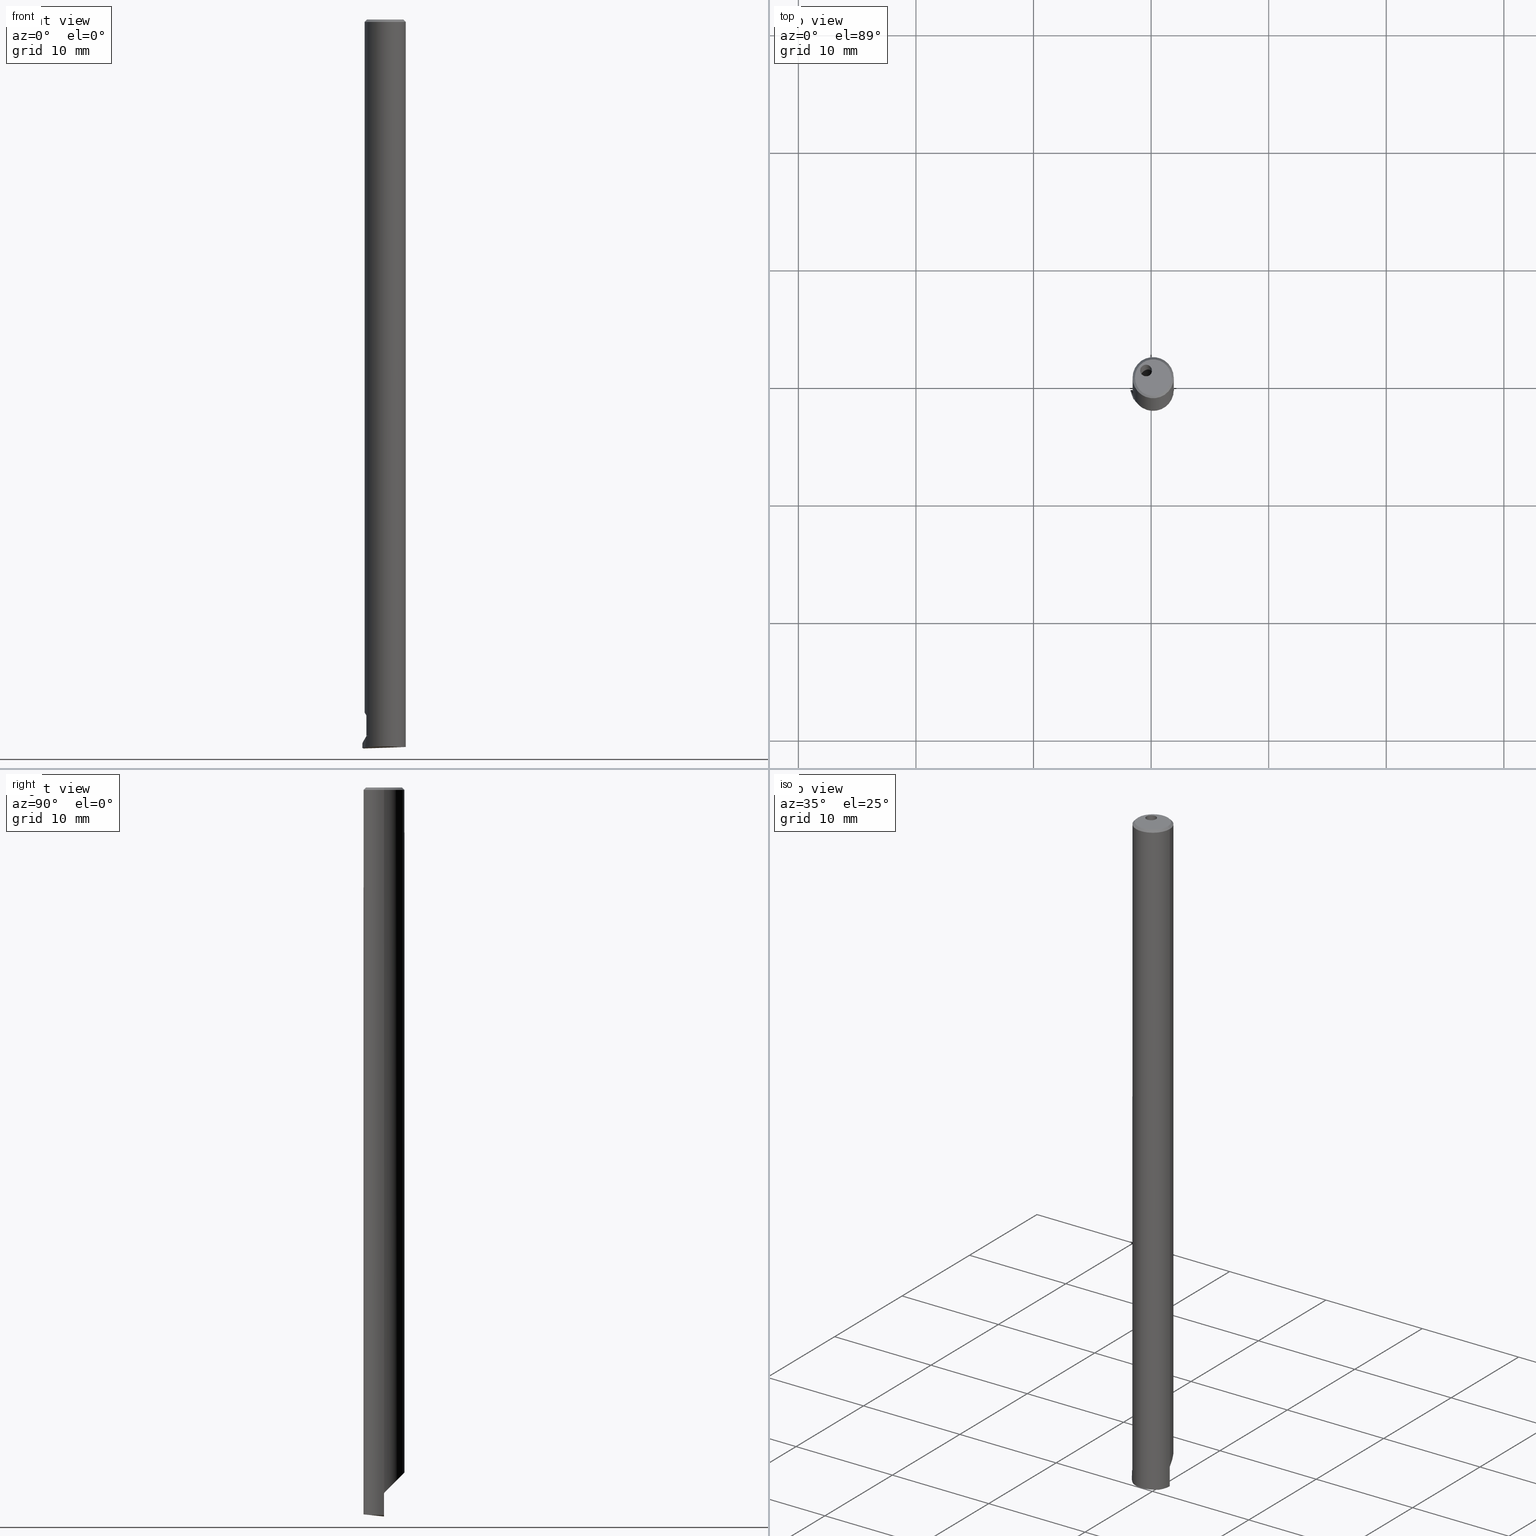
[diagram: canonical four-view strip — front | top / right | iso, engineering-drawing reading convention]
A machine part, canonical four-view strip (front | top / right | iso — engineering-drawing reading convention). The complete STEP part file that produces these views, byte-faithful:
ISO-10303-21;
HEADER;
FILE_DESCRIPTION(('no description'),'unknown implementation level');
FILE_NAME('4BD83760-DE26-4A73-AEEC-5D3EAB4F9345_export.stp','  ',('CIMSOURCE GmbH'),('CADClick - KiM GmbH - www.kimweb.de'),'unknown preprocess','ACIS','unknown authorization');
FILE_SCHEMA(('automotive_design'));
ENDSEC;
DATA;
#1=MECHANICAL_DESIGN_GEOMETRIC_PRESENTATION_REPRESENTATION(' ',(#10,#11,#12,#13,#14,#15,#16,#17,#18,#19,#20,#21,#22,#23,#24,#25,#26,#27,#28,#29,#30,#31,#32,#33,#34,#35,#36,#37,#38,#39,#40,#41,#42,#43,#44,#45,#46,#47,#48,#49,#50,#51,#52,#53,#54,#55,#56,#57,#58,#59,#60,#61,#62,#63,#64,#65,#66,#67,#68,#69,#70,#71,#72,#73,#74,#75,#76,#77,#78,#79,#80,#81,#82,#83,#84,#85,#86,#87,#88,#89,#90,#91,#92,#93,#94,#95,#96,#97,#98,#99,#100,#101,#102,#103,#104,#105,#106),#6);
#2=PRODUCT_DEFINITION_CONTEXT('',#107,'design');
#3=APPLICATION_PROTOCOL_DEFINITION('INTERNATIONAL STANDARD','automotive_design',1994,#107);
#4=PRODUCT_CATEGORY_RELATIONSHIP('NONE','NONE',#108,#109);
#5=SHAPE_DEFINITION_REPRESENTATION(#110,#111);
#6= (GEOMETRIC_REPRESENTATION_CONTEXT(3)GLOBAL_UNCERTAINTY_ASSIGNED_CONTEXT((#114))GLOBAL_UNIT_ASSIGNED_CONTEXT((#116,#117,#118))REPRESENTATION_CONTEXT('NONE','WORKSPACE'));
#10=STYLED_ITEM('',(#120),#121);
#11=STYLED_ITEM('',(#122),#123);
#12=STYLED_ITEM('',(#124),#125);
#13=STYLED_ITEM('',(#126),#127);
#14=STYLED_ITEM('',(#128),#129);
#15=STYLED_ITEM('',(#130),#131);
#16=STYLED_ITEM('',(#132),#133);
#17=STYLED_ITEM('',(#134),#135);
#18=STYLED_ITEM('',(#136),#137);
#19=STYLED_ITEM('',(#138),#139);
#20=STYLED_ITEM('',(#140),#141);
#21=STYLED_ITEM('',(#142),#143);
#22=STYLED_ITEM('',(#144),#145);
#23=STYLED_ITEM('',(#146),#147);
#24=STYLED_ITEM('',(#148),#149);
#25=STYLED_ITEM('',(#150),#151);
#26=STYLED_ITEM('',(#152),#153);
#27=STYLED_ITEM('',(#154),#155);
#28=STYLED_ITEM('',(#156),#157);
#29=STYLED_ITEM('',(#158),#159);
#30=STYLED_ITEM('',(#160),#161);
#31=STYLED_ITEM('',(#162),#163);
#32=STYLED_ITEM('',(#164),#165);
#33=STYLED_ITEM('',(#166),#167);
#34=STYLED_ITEM('',(#168),#169);
#35=STYLED_ITEM('',(#170),#171);
#36=STYLED_ITEM('',(#172),#173);
#37=STYLED_ITEM('',(#174),#175);
#38=STYLED_ITEM('',(#176),#177);
#39=STYLED_ITEM('',(#178),#179);
#40=STYLED_ITEM('',(#180),#181);
#41=STYLED_ITEM('',(#182),#183);
#42=STYLED_ITEM('',(#184),#185);
#43=STYLED_ITEM('',(#186),#187);
#44=STYLED_ITEM('',(#188),#189);
#45=STYLED_ITEM('',(#190),#191);
#46=STYLED_ITEM('',(#192),#193);
#47=STYLED_ITEM('',(#194),#195);
#48=STYLED_ITEM('',(#196),#197);
#49=STYLED_ITEM('',(#198),#199);
#50=STYLED_ITEM('',(#200),#201);
#51=STYLED_ITEM('',(#202),#203);
#52=STYLED_ITEM('',(#204),#205);
#53=STYLED_ITEM('',(#206),#207);
#54=STYLED_ITEM('',(#208),#209);
#55=STYLED_ITEM('',(#210),#211);
#56=STYLED_ITEM('',(#212),#213);
#57=STYLED_ITEM('',(#214),#215);
#58=STYLED_ITEM('',(#216),#217);
#59=STYLED_ITEM('',(#218),#219);
#60=STYLED_ITEM('',(#220),#221);
#61=STYLED_ITEM('',(#222),#223);
#62=STYLED_ITEM('',(#224),#225);
#63=STYLED_ITEM('',(#226),#227);
#64=STYLED_ITEM('',(#228),#229);
#65=STYLED_ITEM('',(#230),#231);
#66=STYLED_ITEM('',(#232),#233);
#67=STYLED_ITEM('',(#234),#235);
#68=STYLED_ITEM('',(#236),#237);
#69=STYLED_ITEM('',(#238),#239);
#70=STYLED_ITEM('',(#240),#241);
#71=STYLED_ITEM('',(#242),#243);
#72=STYLED_ITEM('',(#244),#245);
#73=STYLED_ITEM('',(#246),#247);
#74=STYLED_ITEM('',(#248),#249);
#75=STYLED_ITEM('',(#250),#251);
#76=STYLED_ITEM('',(#252),#253);
#77=STYLED_ITEM('',(#254),#255);
#78=STYLED_ITEM('',(#256),#257);
#79=STYLED_ITEM('',(#258),#259);
#80=STYLED_ITEM('',(#260),#261);
#81=STYLED_ITEM('',(#262),#263);
#82=STYLED_ITEM('',(#264),#265);
#83=STYLED_ITEM('',(#266),#267);
#84=STYLED_ITEM('',(#268),#269);
#85=STYLED_ITEM('',(#270),#271);
#86=STYLED_ITEM('',(#272),#273);
#87=STYLED_ITEM('',(#274),#275);
#88=STYLED_ITEM('',(#276),#277);
#89=STYLED_ITEM('',(#278),#279);
#90=STYLED_ITEM('',(#280),#281);
#91=STYLED_ITEM('',(#282),#283);
#92=STYLED_ITEM('',(#284),#285);
#93=STYLED_ITEM('',(#286),#287);
#94=STYLED_ITEM('',(#288),#289);
#95=STYLED_ITEM('',(#290),#291);
#96=STYLED_ITEM('',(#292),#293);
#97=STYLED_ITEM('',(#294),#295);
#98=STYLED_ITEM('',(#296),#297);
#99=STYLED_ITEM('',(#298),#299);
#100=STYLED_ITEM('',(#300),#301);
#101=STYLED_ITEM('',(#302),#303);
#102=STYLED_ITEM('',(#304),#305);
#103=STYLED_ITEM('',(#306),#307);
#104=STYLED_ITEM('',(#308),#309);
#105=STYLED_ITEM('',(#310),#311);
#106=STYLED_ITEM('',(#312),#313);
#107=APPLICATION_CONTEXT(' ');
#108=PRODUCT_CATEGORY('part','NONE');
#109=PRODUCT_RELATED_PRODUCT_CATEGORY('detail',' ',(#314));
#110=PRODUCT_DEFINITION_SHAPE('NONE','NONE',#315);
#111=ADVANCED_BREP_SHAPE_REPRESENTATION('NONE',(#231,#316),#6);
#114=UNCERTAINTY_MEASURE_WITH_UNIT(LENGTH_MEASURE(1.0E-006),#116,'','');
#116= (CONVERSION_BASED_UNIT('MILLIMETRE',#319)LENGTH_UNIT()NAMED_UNIT(#322));
#117= (NAMED_UNIT(#324)PLANE_ANGLE_UNIT()SI_UNIT($,.RADIAN.));
#118= (NAMED_UNIT(#324)SOLID_ANGLE_UNIT()SI_UNIT($,.STERADIAN.));
#120=PRESENTATION_STYLE_ASSIGNMENT((#330));
#121=VERTEX_POINT('NONE',#331);
#122=PRESENTATION_STYLE_ASSIGNMENT((#332));
#123=ADVANCED_FACE('NONE',(#333),#334,.F.);
#124=PRESENTATION_STYLE_ASSIGNMENT((#335));
#125=EDGE_CURVE('NONE',#249,#171,#336,.F.);
#126=PRESENTATION_STYLE_ASSIGNMENT((#337));
#127=EDGE_CURVE('NONE',#307,#121,#338,.T.);
#128=PRESENTATION_STYLE_ASSIGNMENT((#339));
#129=ADVANCED_FACE('NONE',(#340),#341,.T.);
#130=PRESENTATION_STYLE_ASSIGNMENT((#342));
#131=EDGE_CURVE('NONE',#303,#121,#343,.T.);
#132=PRESENTATION_STYLE_ASSIGNMENT((#344));
#133=VERTEX_POINT('NONE',#345);
#134=PRESENTATION_STYLE_ASSIGNMENT((#346));
#135=VERTEX_POINT('NONE',#347);
#136=PRESENTATION_STYLE_ASSIGNMENT((#348));
#137=VERTEX_POINT('NONE',#349);
#138=PRESENTATION_STYLE_ASSIGNMENT((#350));
#139=EDGE_CURVE('NONE',#287,#137,#351,.T.);
#140=PRESENTATION_STYLE_ASSIGNMENT((#352));
#141=EDGE_CURVE('NONE',#209,#147,#353,.T.);
#142=PRESENTATION_STYLE_ASSIGNMENT((#354));
#143=EDGE_CURVE('NONE',#277,#135,#355,.T.);
#144=PRESENTATION_STYLE_ASSIGNMENT((#356));
#145=ADVANCED_FACE('NONE',(#357),#358,.F.);
#146=PRESENTATION_STYLE_ASSIGNMENT((#359));
#147=VERTEX_POINT('NONE',#360);
#148=PRESENTATION_STYLE_ASSIGNMENT((#361));
#149=VERTEX_POINT('NONE',#362);
#150=PRESENTATION_STYLE_ASSIGNMENT((#363));
#151=ADVANCED_FACE('NONE',(#364),#365,.F.);
#152=PRESENTATION_STYLE_ASSIGNMENT((#366));
#153=ADVANCED_FACE('NONE',(#367),#368,.F.);
#154=PRESENTATION_STYLE_ASSIGNMENT((#369));
#155=VERTEX_POINT('NONE',#370);
#156=PRESENTATION_STYLE_ASSIGNMENT((#371));
#157=EDGE_CURVE('NONE',#289,#261,#372,.T.);
#158=PRESENTATION_STYLE_ASSIGNMENT((#373));
#159=EDGE_CURVE('NONE',#305,#303,#374,.T.);
#160=PRESENTATION_STYLE_ASSIGNMENT((#375));
#161=EDGE_CURVE('NONE',#173,#177,#376,.T.);
#162=PRESENTATION_STYLE_ASSIGNMENT((#377));
#163=VERTEX_POINT('NONE',#378);
#164=PRESENTATION_STYLE_ASSIGNMENT((#379));
#165=EDGE_CURVE('NONE',#305,#307,#380,.T.);
#166=PRESENTATION_STYLE_ASSIGNMENT((#381));
#167=EDGE_CURVE('NONE',#313,#133,#382,.F.);
#168=PRESENTATION_STYLE_ASSIGNMENT((#383));
#169=EDGE_CURVE('NONE',#155,#179,#384,.T.);
#170=PRESENTATION_STYLE_ASSIGNMENT((#385));
#171=VERTEX_POINT('NONE',#386);
#172=PRESENTATION_STYLE_ASSIGNMENT((#387));
#173=VERTEX_POINT('NONE',#388);
#174=PRESENTATION_STYLE_ASSIGNMENT((#389));
#175=ADVANCED_FACE('NONE',(#390),#391,.F.);
#176=PRESENTATION_STYLE_ASSIGNMENT((#392));
#177=VERTEX_POINT('NONE',#393);
#178=PRESENTATION_STYLE_ASSIGNMENT((#394));
#179=VERTEX_POINT('NONE',#395);
#180=PRESENTATION_STYLE_ASSIGNMENT((#396));
#181=EDGE_CURVE('NONE',#183,#133,#397,.T.);
#182=PRESENTATION_STYLE_ASSIGNMENT((#398));
#183=VERTEX_POINT('NONE',#399);
#184=PRESENTATION_STYLE_ASSIGNMENT((#400));
#185=VERTEX_POINT('NONE',#401);
#186=PRESENTATION_STYLE_ASSIGNMENT((#402));
#187=ADVANCED_FACE('NONE',(#403,#404),#405,.F.);
#188=PRESENTATION_STYLE_ASSIGNMENT((#406));
#189=EDGE_CURVE('NONE',#185,#121,#407,.T.);
#190=PRESENTATION_STYLE_ASSIGNMENT((#408));
#191=ADVANCED_FACE('NONE',(#409),#410,.F.);
#192=PRESENTATION_STYLE_ASSIGNMENT((#411));
#193=ADVANCED_FACE('NONE',(#412),#413,.F.);
#194=PRESENTATION_STYLE_ASSIGNMENT((#414));
#195=VERTEX_POINT('NONE',#415);
#196=PRESENTATION_STYLE_ASSIGNMENT((#416));
#197=ADVANCED_FACE('NONE',(#417),#418,.T.);
#198=PRESENTATION_STYLE_ASSIGNMENT((#419));
#199=EDGE_CURVE('NONE',#219,#149,#420,.F.);
#200=PRESENTATION_STYLE_ASSIGNMENT((#421));
#201=EDGE_CURVE('NONE',#179,#285,#422,.F.);
#202=PRESENTATION_STYLE_ASSIGNMENT((#423));
#203=EDGE_CURVE('NONE',#155,#287,#424,.F.);
#204=PRESENTATION_STYLE_ASSIGNMENT((#425));
#205=EDGE_CURVE('NONE',#287,#289,#426,.T.);
#206=PRESENTATION_STYLE_ASSIGNMENT((#427));
#207=EDGE_CURVE('NONE',#297,#307,#428,.T.);
#208=PRESENTATION_STYLE_ASSIGNMENT((#429));
#209=VERTEX_POINT('NONE',#430);
#210=PRESENTATION_STYLE_ASSIGNMENT((#431));
#211=ADVANCED_FACE('NONE',(#432),#433,.T.);
#212=PRESENTATION_STYLE_ASSIGNMENT((#434));
#213=ADVANCED_FACE('NONE',(#435),#436,.F.);
#214=PRESENTATION_STYLE_ASSIGNMENT((#437));
#215=EDGE_CURVE('NONE',#289,#277,#438,.T.);
#216=PRESENTATION_STYLE_ASSIGNMENT((#439));
#217=EDGE_CURVE('NONE',#183,#291,#440,.F.);
#218=PRESENTATION_STYLE_ASSIGNMENT((#441));
#219=VERTEX_POINT('NONE',#442);
#220=PRESENTATION_STYLE_ASSIGNMENT((#443));
#221=EDGE_CURVE('NONE',#177,#171,#444,.T.);
#222=PRESENTATION_STYLE_ASSIGNMENT((#445));
#223=EDGE_CURVE('NONE',#209,#195,#446,.F.);
#224=PRESENTATION_STYLE_ASSIGNMENT((#447));
#225=EDGE_CURVE('NONE',#177,#173,#448,.F.);
#226=PRESENTATION_STYLE_ASSIGNMENT((#449));
#227=EDGE_CURVE('NONE',#171,#249,#450,.T.);
#228=PRESENTATION_STYLE_ASSIGNMENT((#451));
#229=EDGE_CURVE('NONE',#219,#313,#452,.F.);
#230=PRESENTATION_STYLE_ASSIGNMENT((#453));
#231=MANIFOLD_SOLID_BREP('NONE',#454);
#232=PRESENTATION_STYLE_ASSIGNMENT((#455));
#233=EDGE_CURVE('NONE',#135,#149,#456,.T.);
#234=PRESENTATION_STYLE_ASSIGNMENT((#457));
#235=VERTEX_POINT('NONE',#458);
#236=PRESENTATION_STYLE_ASSIGNMENT((#459));
#237=ADVANCED_FACE('NONE',(#460),#461,.F.);
#238=PRESENTATION_STYLE_ASSIGNMENT((#462));
#239=EDGE_CURVE('NONE',#163,#261,#463,.F.);
#240=PRESENTATION_STYLE_ASSIGNMENT((#464));
#241=EDGE_CURVE('NONE',#285,#297,#465,.F.);
#242=PRESENTATION_STYLE_ASSIGNMENT((#466));
#243=EDGE_CURVE('NONE',#147,#137,#467,.T.);
#244=PRESENTATION_STYLE_ASSIGNMENT((#468));
#245=EDGE_CURVE('NONE',#149,#313,#469,.T.);
#246=PRESENTATION_STYLE_ASSIGNMENT((#470));
#247=EDGE_CURVE('NONE',#185,#183,#471,.F.);
#248=PRESENTATION_STYLE_ASSIGNMENT((#472));
#249=VERTEX_POINT('NONE',#473);
#250=PRESENTATION_STYLE_ASSIGNMENT((#474));
#251=EDGE_CURVE('NONE',#291,#195,#475,.F.);
#252=PRESENTATION_STYLE_ASSIGNMENT((#476));
#253=EDGE_CURVE('NONE',#261,#209,#477,.F.);
#254=PRESENTATION_STYLE_ASSIGNMENT((#478));
#255=ADVANCED_FACE('NONE',(#479,#480),#481,.F.);
#256=PRESENTATION_STYLE_ASSIGNMENT((#482));
#257=ADVANCED_FACE('NONE',(#483),#484,.F.);
#258=PRESENTATION_STYLE_ASSIGNMENT((#485));
#259=ADVANCED_FACE('NONE',(#486),#487,.T.);
#260=PRESENTATION_STYLE_ASSIGNMENT((#488));
#261=VERTEX_POINT('NONE',#489);
#262=PRESENTATION_STYLE_ASSIGNMENT((#490));
#263=EDGE_CURVE('NONE',#297,#219,#491,.F.);
#264=PRESENTATION_STYLE_ASSIGNMENT((#492));
#265=EDGE_CURVE('NONE',#133,#185,#493,.F.);
#266=PRESENTATION_STYLE_ASSIGNMENT((#494));
#267=ADVANCED_FACE('NONE',(#495),#496,.T.);
#268=PRESENTATION_STYLE_ASSIGNMENT((#497));
#269=ADVANCED_FACE('NONE',(#498),#499,.T.);
#270=PRESENTATION_STYLE_ASSIGNMENT((#500));
#271=EDGE_CURVE('NONE',#291,#163,#501,.F.);
#272=PRESENTATION_STYLE_ASSIGNMENT((#502));
#273=EDGE_CURVE('NONE',#135,#297,#503,.T.);
#274=PRESENTATION_STYLE_ASSIGNMENT((#504));
#275=EDGE_CURVE('NONE',#137,#155,#505,.F.);
#276=PRESENTATION_STYLE_ASSIGNMENT((#506));
#277=VERTEX_POINT('NONE',#507);
#278=PRESENTATION_STYLE_ASSIGNMENT((#508));
#279=EDGE_CURVE('NONE',#285,#155,#509,.T.);
#280=PRESENTATION_STYLE_ASSIGNMENT((#510));
#281=EDGE_CURVE('NONE',#179,#235,#511,.T.);
#282=PRESENTATION_STYLE_ASSIGNMENT((#512));
#283=EDGE_CURVE('NONE',#303,#305,#513,.F.);
#284=PRESENTATION_STYLE_ASSIGNMENT((#514));
#285=VERTEX_POINT('NONE',#515);
#286=PRESENTATION_STYLE_ASSIGNMENT((#516));
#287=VERTEX_POINT('NONE',#517);
#288=PRESENTATION_STYLE_ASSIGNMENT((#518));
#289=VERTEX_POINT('NONE',#519);
#290=PRESENTATION_STYLE_ASSIGNMENT((#520));
#291=VERTEX_POINT('NONE',#521);
#292=PRESENTATION_STYLE_ASSIGNMENT((#522));
#293=ADVANCED_FACE('NONE',(#523),#524,.F.);
#294=PRESENTATION_STYLE_ASSIGNMENT((#525));
#295=EDGE_CURVE('NONE',#173,#249,#526,.T.);
#296=PRESENTATION_STYLE_ASSIGNMENT((#527));
#297=VERTEX_POINT('NONE',#528);
#298=PRESENTATION_STYLE_ASSIGNMENT((#529));
#299=EDGE_CURVE('NONE',#235,#147,#530,.T.);
#300=PRESENTATION_STYLE_ASSIGNMENT((#531));
#301=EDGE_CURVE('NONE',#163,#277,#532,.T.);
#302=PRESENTATION_STYLE_ASSIGNMENT((#533));
#303=VERTEX_POINT('NONE',#534);
#304=PRESENTATION_STYLE_ASSIGNMENT((#535));
#305=VERTEX_POINT('NONE',#536);
#306=PRESENTATION_STYLE_ASSIGNMENT((#537));
#307=VERTEX_POINT('NONE',#538);
#308=PRESENTATION_STYLE_ASSIGNMENT((#539));
#309=EDGE_CURVE('NONE',#121,#307,#540,.F.);
#310=PRESENTATION_STYLE_ASSIGNMENT((#541));
#311=EDGE_CURVE('NONE',#195,#235,#542,.T.);
#312=PRESENTATION_STYLE_ASSIGNMENT((#543));
#313=VERTEX_POINT('NONE',#544);
#314=PRODUCT('NONE','NONE','PART-NONE-DESC',(#545));
#315=PRODUCT_DEFINITION('NONE','NONE',#546,#2);
#316=AXIS2_PLACEMENT_3D('',#547,#548,#549);
#319=LENGTH_MEASURE_WITH_UNIT(LENGTH_MEASURE(1.0),#550);
#322=DIMENSIONAL_EXPONENTS(1.0,0.0,0.0,0.0,0.0,0.0,0.0);
#324=DIMENSIONAL_EXPONENTS(0.0,0.0,0.0,0.0,0.0,0.0,0.0);
#330=POINT_STYLE(' ',#551,POSITIVE_LENGTH_MEASURE(1.0E-006),#552);
#331=CARTESIAN_POINT('',(-1.57632657181676,-0.173673428183238,-0.199999999999996));
#332=SURFACE_STYLE_USAGE(.BOTH.,#553);
#333=FACE_OUTER_BOUND('',#554,.T.);
#334=CYLINDRICAL_SURFACE('',#555,0.25);
#335=CURVE_STYLE('',#556,POSITIVE_LENGTH_MEASURE(1.0E-006),#557);
#336=CIRCLE('',#558,0.5);
#337=CURVE_STYLE('',#559,POSITIVE_LENGTH_MEASURE(1.0E-006),#560);
#338=CIRCLE('',#561,1.75);
#339=SURFACE_STYLE_USAGE(.BOTH.,#562);
#340=FACE_OUTER_BOUND('',#563,.T.);
#341=CONICAL_SURFACE('',#564,1.93795556049136,0.523598775598301);
#342=CURVE_STYLE('',#565,POSITIVE_LENGTH_MEASURE(1.0E-006),#566);
#343=LINE('',#567,#568);
#344=POINT_STYLE(' ',#569,POSITIVE_LENGTH_MEASURE(1.0E-006),#570);
#345=CARTESIAN_POINT('',(-1.42632657181675,0.535198915754661,-59.1820508075688));
#346=POINT_STYLE(' ',#571,POSITIVE_LENGTH_MEASURE(1.0E-006),#572);
#347=CARTESIAN_POINT('',(-1.42632657181676,-0.17367342818324,-60.1035533905933));
#348=POINT_STYLE(' ',#573,POSITIVE_LENGTH_MEASURE(1.0E-006),#574);
#349=CARTESIAN_POINT('',(-1.66415567174621,-0.47058755932157,-61.9687930673071));
#350=CURVE_STYLE('',#575,POSITIVE_LENGTH_MEASURE(1.0E-006),#576);
#351=B_SPLINE_CURVE_WITH_KNOTS('',3,(#577,#578,#579,#580,#581,#582),.UNSPECIFIED.,.F.,.F.,(4,2,4),(0.0,0.238195085802326,0.782967511242816),.UNSPECIFIED.);
#352=CURVE_STYLE('',#583,POSITIVE_LENGTH_MEASURE(1.0E-006),#584);
#353=LINE('',#585,#586);
#354=CURVE_STYLE('',#587,POSITIVE_LENGTH_MEASURE(1.0E-006),#588);
#355=LINE('',#589,#590);
#356=SURFACE_STYLE_USAGE(.BOTH.,#591);
#357=FACE_OUTER_BOUND('',#592,.T.);
#358=PLANE('',#593);
#359=POINT_STYLE(' ',#594,POSITIVE_LENGTH_MEASURE(1.0E-006),#595);
#360=CARTESIAN_POINT('',(-1.50997618743661,-0.88969464710414,-61.9247431373513));
#361=POINT_STYLE(' ',#596,POSITIVE_LENGTH_MEASURE(1.0E-006),#597);
#362=CARTESIAN_POINT('',(-1.42632657181676,-0.10045012347987,-59.9267766952966));
#363=SURFACE_STYLE_USAGE(.BOTH.,#598);
#364=FACE_OUTER_BOUND('',#599,.T.);
#365=PLANE('',#600);
#366=SURFACE_STYLE_USAGE(.BOTH.,#601);
#367=FACE_OUTER_BOUND('',#602,.T.);
#368=PLANE('',#603);
#369=POINT_STYLE(' ',#604,POSITIVE_LENGTH_MEASURE(1.0E-006),#605);
#370=CARTESIAN_POINT('',(-1.68671043793311,-0.173673428183238,-61.9968705356459));
#371=CURVE_STYLE('',#606,POSITIVE_LENGTH_MEASURE(1.0E-006),#607);
#372=LINE('',#608,#609);
#373=CURVE_STYLE('',#610,POSITIVE_LENGTH_MEASURE(1.0E-006),#611);
#374=CIRCLE('',#612,1.55);
#375=CURVE_STYLE('',#613,POSITIVE_LENGTH_MEASURE(1.0E-006),#614);
#376=ELLIPSE('',#615,0.707106781186544,0.5);
#377=POINT_STYLE(' ',#616,POSITIVE_LENGTH_MEASURE(1.0E-006),#617);
#378=CARTESIAN_POINT('',(-1.42632657181676,-0.951085564981653,-60.95));
#379=CURVE_STYLE('',#618,POSITIVE_LENGTH_MEASURE(1.0E-006),#619);
#380=LINE('',#620,#621);
#381=CURVE_STYLE('',#622,POSITIVE_LENGTH_MEASURE(1.0E-006),#623);
#382=LINE('',#624,#625);
#383=CURVE_STYLE('',#626,POSITIVE_LENGTH_MEASURE(1.0E-006),#627);
#384=LINE('',#628,#629);
#385=POINT_STYLE(' ',#630,POSITIVE_LENGTH_MEASURE(1.0E-006),#631);
#386=CARTESIAN_POINT('',(-0.926326571816754,0.426326571816759,0.0));
#387=POINT_STYLE(' ',#632,POSITIVE_LENGTH_MEASURE(1.0E-006),#633);
#388=CARTESIAN_POINT('',(0.0736734281832463,0.426326571816756,-59.4));
#389=SURFACE_STYLE_USAGE(.BOTH.,#634);
#390=FACE_OUTER_BOUND('',#635,.T.);
#391=PLANE('',#636);
#392=POINT_STYLE(' ',#637,POSITIVE_LENGTH_MEASURE(1.0E-006),#638);
#393=CARTESIAN_POINT('',(-0.926326571816754,0.426326571816759,-59.4));
#394=POINT_STYLE(' ',#639,POSITIVE_LENGTH_MEASURE(1.0E-006),#640);
#395=CARTESIAN_POINT('',(1.53467671607616,-1.27375072107892,-61.8843772173971));
#396=CURVE_STYLE('',#641,POSITIVE_LENGTH_MEASURE(1.0E-006),#642);
#397=LINE('',#643,#644);
#398=POINT_STYLE(' ',#645,POSITIVE_LENGTH_MEASURE(1.0E-006),#646);
#399=CARTESIAN_POINT('',(-1.42632657181674,-0.882545772121169,-59.1820508075689));
#400=POINT_STYLE(' ',#647,POSITIVE_LENGTH_MEASURE(1.0E-006),#648);
#401=CARTESIAN_POINT('',(-1.57632657181676,-0.173673428183238,-58.9222431864335));
#402=SURFACE_STYLE_USAGE(.BOTH.,#649);
#403=FACE_OUTER_BOUND('',#650,.T.);
#404=FACE_BOUND('',#651,.T.);
#405=PLANE('',#652);
#406=CURVE_STYLE('',#653,POSITIVE_LENGTH_MEASURE(1.0E-006),#654);
#407=LINE('',#655,#656);
#408=SURFACE_STYLE_USAGE(.BOTH.,#657);
#409=FACE_OUTER_BOUND('',#658,.T.);
#410=PLANE('',#659);
#411=SURFACE_STYLE_USAGE(.BOTH.,#660);
#412=FACE_OUTER_BOUND('',#661,.T.);
#413=PLANE('',#662);
#414=POINT_STYLE(' ',#663,POSITIVE_LENGTH_MEASURE(1.0E-006),#664);
#415=CARTESIAN_POINT('',(-1.16690434727498,-1.29855174513468,-60.9));
#416=SURFACE_STYLE_USAGE(.BOTH.,#665);
#417=FACE_OUTER_BOUND('',#666,.T.);
#418=CONICAL_SURFACE('',#667,1.55,0.785398163397453);
#419=CURVE_STYLE('',#668,POSITIVE_LENGTH_MEASURE(1.0E-006),#669);
#420=LINE('',#670,#671);
#421=CURVE_STYLE('',#672,POSITIVE_LENGTH_MEASURE(1.0E-006),#673);
#422=ELLIPSE('',#674,1.75106670252294,1.75);
#423=CURVE_STYLE('',#675,POSITIVE_LENGTH_MEASURE(1.0E-006),#676);
#424=B_SPLINE_CURVE_WITH_KNOTS('',3,(#677,#678,#679,#680,#681,#682),.UNSPECIFIED.,.F.,.F.,(4,2,4),(-0.322730394814547,-0.161503767803388,-0.0),.UNSPECIFIED.);
#425=CURVE_STYLE('',#683,POSITIVE_LENGTH_MEASURE(1.0E-006),#684);
#426=LINE('',#685,#686);
#427=CURVE_STYLE('',#687,POSITIVE_LENGTH_MEASURE(1.0E-006),#688);
#428=LINE('',#689,#690);
#429=POINT_STYLE(' ',#691,POSITIVE_LENGTH_MEASURE(1.0E-006),#692);
#430=CARTESIAN_POINT('',(-1.44887740789554,-0.962509337125329,-60.9937790712763));
#431=SURFACE_STYLE_USAGE(.BOTH.,#693);
#432=FACE_OUTER_BOUND('',#694,.T.);
#433=B_SPLINE_SURFACE_WITH_KNOTS('',1,3,((#695,#696,#697,#698,#699,#700,#701,#702,#703,#704),(#705,#706,#707,#708,#709,#710,#711,#712,#713,#714),(#715,#716,#717,#718,#719,#720,#721,#722,#723,#724),(#725,#726,#727,#728,#729,#730,#731,#732,#733,#734)),.UNSPECIFIED.,.F.,.F.,.F.,(2,1,1,2),(4,3,3,4),(-0.866127726133262,0.0050951526810179,1.0,1.87122287881428),(1.52035818784954,1.57310238330127,1.73032574404728,1.78547518811796),.UNSPECIFIED.);
#434=SURFACE_STYLE_USAGE(.BOTH.,#735);
#435=FACE_OUTER_BOUND('',#736,.T.);
#436=CYLINDRICAL_SURFACE('',#737,0.5);
#437=CURVE_STYLE('',#738,POSITIVE_LENGTH_MEASURE(1.0E-006),#739);
#438=LINE('',#740,#741);
#439=CURVE_STYLE('',#742,POSITIVE_LENGTH_MEASURE(1.0E-006),#743);
#440=LINE('',#744,#745);
#441=POINT_STYLE(' ',#746,POSITIVE_LENGTH_MEASURE(1.0E-006),#747);
#442=CARTESIAN_POINT('',(1.92214085643243,-0.100450123479882,-59.9267766952966));
#443=CURVE_STYLE('',#748,POSITIVE_LENGTH_MEASURE(1.0E-006),#749);
#444=LINE('',#750,#751);
#445=CURVE_STYLE('',#752,POSITIVE_LENGTH_MEASURE(1.0E-006),#753);
#446=(B_SPLINE_CURVE(2,(#755,#756,#757),.UNSPECIFIED.,.F.,.F.)B_SPLINE_CURVE_WITH_KNOTS((3,3),(2.28012375391845,2.93810736953897),.UNSPECIFIED.)RATIONAL_B_SPLINE_CURVE((1.22389298204766,1.22389298204766,1.20524835065919))BOUNDED_CURVE()REPRESENTATION_ITEM('')GEOMETRIC_REPRESENTATION_ITEM()CURVE());
#447=CURVE_STYLE('',#764,POSITIVE_LENGTH_MEASURE(1.0E-006),#765);
#448=ELLIPSE('',#766,0.707106781186544,0.5);
#449=CURVE_STYLE('',#767,POSITIVE_LENGTH_MEASURE(1.0E-006),#768);
#450=CIRCLE('',#769,0.5);
#451=CURVE_STYLE('',#770,POSITIVE_LENGTH_MEASURE(1.0E-006),#771);
#452=ELLIPSE('',#772,2.4748737341529,1.75);
#453=SURFACE_STYLE_USAGE(.BOTH.,#773);
#454=CLOSED_SHELL('',(#197,#237,#267,#187,#255,#269,#129,#293,#123,#257,#151,#193,#153,#211,#175,#145,#191,#213,#259));
#455=CURVE_STYLE('',#774,POSITIVE_LENGTH_MEASURE(1.0E-006),#775);
#456=CIRCLE('',#776,0.25);
#457=POINT_STYLE(' ',#777,POSITIVE_LENGTH_MEASURE(1.0E-006),#778);
#458=CARTESIAN_POINT('',(-1.16690434727498,-1.29855174513468,-61.8817705247299));
#459=SURFACE_STYLE_USAGE(.BOTH.,#779);
#460=FACE_OUTER_BOUND('',#780,.T.);
#461=CYLINDRICAL_SURFACE('',#781,0.5);
#462=CURVE_STYLE('',#782,POSITIVE_LENGTH_MEASURE(1.0E-006),#783);
#463=B_SPLINE_CURVE_WITH_KNOTS('',2,(#784,#785,#786),.UNSPECIFIED.,.F.,.F.,(3,3),(1.30064827876647,1.34896188564543),.UNSPECIFIED.);
#464=CURVE_STYLE('',#787,POSITIVE_LENGTH_MEASURE(1.0E-006),#788);
#465=LINE('',#789,#790);
#466=CURVE_STYLE('',#791,POSITIVE_LENGTH_MEASURE(1.0E-006),#792);
#467=LINE('',#793,#794);
#468=CURVE_STYLE('',#795,POSITIVE_LENGTH_MEASURE(1.0E-006),#796);
#469=LINE('',#797,#798);
#470=CURVE_STYLE('',#799,POSITIVE_LENGTH_MEASURE(1.0E-006),#800);
#471=ELLIPSE('',#801,3.49999999999993,1.75);
#472=POINT_STYLE(' ',#802,POSITIVE_LENGTH_MEASURE(1.0E-006),#803);
#473=CARTESIAN_POINT('',(0.0736734281832463,0.426326571816756,0.0));
#474=CURVE_STYLE('',#804,POSITIVE_LENGTH_MEASURE(1.0E-006),#805);
#475=CIRCLE('',#806,1.75);
#476=CURVE_STYLE('',#807,POSITIVE_LENGTH_MEASURE(1.0E-006),#808);
#477=(B_SPLINE_CURVE(2,(#810,#811,#812),.UNSPECIFIED.,.F.,.F.)B_SPLINE_CURVE_WITH_KNOTS((3,3),(1.88288924888649,1.89209312007875),.UNSPECIFIED.)RATIONAL_B_SPLINE_CURVE((1.21497132708114,1.21509210192849,1.21520892095406))BOUNDED_CURVE()REPRESENTATION_ITEM('')GEOMETRIC_REPRESENTATION_ITEM()CURVE());
#478=SURFACE_STYLE_USAGE(.BOTH.,#819);
#479=FACE_OUTER_BOUND('',#820,.T.);
#480=FACE_BOUND('',#821,.T.);
#481=PLANE('',#822);
#482=SURFACE_STYLE_USAGE(.BOTH.,#823);
#483=FACE_OUTER_BOUND('',#824,.T.);
#484=PLANE('',#825);
#485=SURFACE_STYLE_USAGE(.BOTH.,#826);
#486=FACE_OUTER_BOUND('',#827,.T.);
#487=CONICAL_SURFACE('',#828,1.55,0.785398163397453);
#488=POINT_STYLE(' ',#829,POSITIVE_LENGTH_MEASURE(1.0E-006),#830);
#489=CARTESIAN_POINT('',(-1.45093896486542,-0.956727925348837,-60.9926299152561));
#490=CURVE_STYLE('',#831,POSITIVE_LENGTH_MEASURE(1.0E-006),#832);
#491=B_SPLINE_CURVE_WITH_KNOTS('',3,(#833,#834,#835,#836,#837,#838),.UNSPECIFIED.,.F.,.F.,(4,2,4),(1.32865395385346,1.42283848551059,1.51702301716772),.UNSPECIFIED.);
#492=CURVE_STYLE('',#839,POSITIVE_LENGTH_MEASURE(1.0E-006),#840);
#493=ELLIPSE('',#841,3.49999999999993,1.75);
#494=SURFACE_STYLE_USAGE(.BOTH.,#842);
#495=FACE_OUTER_BOUND('',#843,.T.);
#496=CYLINDRICAL_SURFACE('',#844,1.75);
#497=SURFACE_STYLE_USAGE(.BOTH.,#845);
#498=FACE_OUTER_BOUND('',#846,.T.);
#499=CYLINDRICAL_SURFACE('',#847,1.75);
#500=CURVE_STYLE('',#848,POSITIVE_LENGTH_MEASURE(1.0E-006),#849);
#501=(B_SPLINE_CURVE(2,(#851,#852,#853),.UNSPECIFIED.,.F.,.F.)B_SPLINE_CURVE_WITH_KNOTS((3,3),(1.27232810320407,1.37022826780195),.UNSPECIFIED.)RATIONAL_B_SPLINE_CURVE((1.21589543307492,1.22135337517257,1.22637300853151))BOUNDED_CURVE()REPRESENTATION_ITEM('')GEOMETRIC_REPRESENTATION_ITEM()CURVE());
#502=CURVE_STYLE('',#860,POSITIVE_LENGTH_MEASURE(1.0E-006),#861);
#503=LINE('',#862,#863);
#504=CURVE_STYLE('',#864,POSITIVE_LENGTH_MEASURE(1.0E-006),#865);
#505=B_SPLINE_CURVE_WITH_KNOTS('',3,(#866,#867,#868,#869,#870,#871,#872,#873),.UNSPECIFIED.,.F.,.F.,(4,2,2,4),(-0.672571283194516,-0.60179929299929,-0.370824419653811,-0.0),.UNSPECIFIED.);
#506=POINT_STYLE(' ',#874,POSITIVE_LENGTH_MEASURE(1.0E-006),#875);
#507=CARTESIAN_POINT('',(-1.42632657181676,-0.173673428183239,-60.95));
#508=CURVE_STYLE('',#876,POSITIVE_LENGTH_MEASURE(1.0E-006),#877);
#509=LINE('',#878,#879);
#510=CURVE_STYLE('',#880,POSITIVE_LENGTH_MEASURE(1.0E-006),#881);
#511=ELLIPSE('',#882,1.75963948923615,1.75);
#512=CURVE_STYLE('',#883,POSITIVE_LENGTH_MEASURE(1.0E-006),#884);
#513=CIRCLE('',#885,1.55);
#514=POINT_STYLE(' ',#886,POSITIVE_LENGTH_MEASURE(1.0E-006),#887);
#515=CARTESIAN_POINT('',(1.92367342818324,-0.173673428183261,-61.8707931528805));
#516=POINT_STYLE(' ',#888,POSITIVE_LENGTH_MEASURE(1.0E-006),#889);
#517=CARTESIAN_POINT('',(-1.77036394143366,-0.173673428183237,-61.9187516042741));
#518=POINT_STYLE(' ',#890,POSITIVE_LENGTH_MEASURE(1.0E-006),#891);
#519=CARTESIAN_POINT('',(-1.75555446981508,-0.173673428183238,-61.5202394466022));
#520=POINT_STYLE(' ',#892,POSITIVE_LENGTH_MEASURE(1.0E-006),#893);
#521=CARTESIAN_POINT('',(-1.42632657181674,-0.882545772121169,-60.9));
#522=SURFACE_STYLE_USAGE(.BOTH.,#894);
#523=FACE_OUTER_BOUND('',#895,.T.);
#524=PLANE('',#896);
#525=CURVE_STYLE('',#897,POSITIVE_LENGTH_MEASURE(1.0E-006),#898);
#526=LINE('',#899,#900);
#527=POINT_STYLE(' ',#901,POSITIVE_LENGTH_MEASURE(1.0E-006),#902);
#528=CARTESIAN_POINT('',(1.92367342818324,-0.173673428183251,-60.1035533905933));
#529=CURVE_STYLE('',#903,POSITIVE_LENGTH_MEASURE(1.0E-006),#904);
#530=LINE('',#905,#906);
#531=CURVE_STYLE('',#907,POSITIVE_LENGTH_MEASURE(1.0E-006),#908);
#532=LINE('',#909,#910);
#533=POINT_STYLE(' ',#911,POSITIVE_LENGTH_MEASURE(1.0E-006),#912);
#534=CARTESIAN_POINT('',(-1.37632657181676,-0.173673428183239,0.0));
#535=POINT_STYLE(' ',#913,POSITIVE_LENGTH_MEASURE(1.0E-006),#914);
#536=CARTESIAN_POINT('',(1.72367342818325,-0.17367342818325,0.0));
#537=POINT_STYLE(' ',#915,POSITIVE_LENGTH_MEASURE(1.0E-006),#916);
#538=CARTESIAN_POINT('',(1.92367342818324,-0.173673428183251,-0.199999999999996));
#539=CURVE_STYLE('',#917,POSITIVE_LENGTH_MEASURE(1.0E-006),#918);
#540=CIRCLE('',#919,1.75);
#541=CURVE_STYLE('',#920,POSITIVE_LENGTH_MEASURE(1.0E-006),#921);
#542=LINE('',#922,#923);
#543=POINT_STYLE(' ',#924,POSITIVE_LENGTH_MEASURE(1.0E-006),#925);
#544=CARTESIAN_POINT('',(-1.42632657181674,0.535198915754691,-59.2911276560621));
#545=PRODUCT_CONTEXT('',#107,'mechanical');
#546=PRODUCT_DEFINITION_FORMATION_WITH_SPECIFIED_SOURCE(' ','NONE',#314,.NOT_KNOWN.);
#547=CARTESIAN_POINT('',(0.0,0.0,0.0));
#548=DIRECTION('',(0.0,0.0,1.0));
#549=DIRECTION('',(1.0,0.0,0.0));
#550= (NAMED_UNIT(#322)LENGTH_UNIT()SI_UNIT(.MILLI.,.METRE.));
#551=PRE_DEFINED_MARKER('');
#552=COLOUR_RGB('',0.752941191196442,0.752941191196442,0.752941191196442);
#553=SURFACE_SIDE_STYLE('',(#927));
#554=EDGE_LOOP('',(#928,#929,#930,#931));
#555=AXIS2_PLACEMENT_3D('',#932,#933,#934);
#556=DRAUGHTING_PRE_DEFINED_CURVE_FONT('continuous');
#557=COLOUR_RGB('',0.752941191196442,0.752941191196442,0.752941191196442);
#558=AXIS2_PLACEMENT_3D('',#935,#936,#937);
#559=DRAUGHTING_PRE_DEFINED_CURVE_FONT('continuous');
#560=COLOUR_RGB('',0.752941191196442,0.752941191196442,0.752941191196442);
#561=AXIS2_PLACEMENT_3D('',#938,#939,#940);
#562=SURFACE_SIDE_STYLE('',(#941));
#563=EDGE_LOOP('',(#942,#943,#944,#945,#946));
#564=AXIS2_PLACEMENT_3D('',#947,#948,#949);
#565=DRAUGHTING_PRE_DEFINED_CURVE_FONT('continuous');
#566=COLOUR_RGB('',0.752941191196442,0.752941191196442,0.752941191196442);
#567=CARTESIAN_POINT('',(-1.37632657181676,-0.173673428183239,0.0));
#568=VECTOR('',#950,1000.0);
#569=PRE_DEFINED_MARKER('');
#570=COLOUR_RGB('',0.752941191196442,0.752941191196442,0.752941191196442);
#571=PRE_DEFINED_MARKER('');
#572=COLOUR_RGB('',0.752941191196442,0.752941191196442,0.752941191196442);
#573=PRE_DEFINED_MARKER('');
#574=COLOUR_RGB('',0.752941191196442,0.752941191196442,0.752941191196442);
#575=DRAUGHTING_PRE_DEFINED_CURVE_FONT('continuous');
#576=COLOUR_RGB('',0.752941191196442,0.752941191196442,0.752941191196442);
#577=CARTESIAN_POINT('',(-1.80799945500893,-0.0679470967996088,-61.8959937831115));
#578=CARTESIAN_POINT('',(-1.78181025815945,-0.141417071086655,-61.9108392782013));
#579=CARTESIAN_POINT('',(-1.76853493298813,-0.178869718154964,-61.9204276870789));
#580=CARTESIAN_POINT('',(-1.70406116893431,-0.359874288157337,-61.9582758982833));
#581=CARTESIAN_POINT('',(-1.67864928286096,-0.430305321809328,-61.9642743457371));
#582=CARTESIAN_POINT('',(-1.62846762832356,-0.569687871887319,-61.9790595092564));
#583=DRAUGHTING_PRE_DEFINED_CURVE_FONT('continuous');
#584=COLOUR_RGB('',0.752941191196442,0.752941191196442,0.752941191196442);
#585=CARTESIAN_POINT('',(-1.48157293760514,-0.923544322132143,-61.4919619074894));
#586=VECTOR('',#951,1.0);
#587=DRAUGHTING_PRE_DEFINED_CURVE_FONT('continuous');
#588=COLOUR_RGB('',0.752941191196442,0.752941191196442,0.752941191196442);
#589=CARTESIAN_POINT('',(-1.42632657181676,-0.173673428183239,-61.725));
#590=VECTOR('',#952,1.0);
#591=SURFACE_SIDE_STYLE('',(#953));
#592=EDGE_LOOP('',(#954,#955,#956,#957,#958,#959));
#593=AXIS2_PLACEMENT_3D('',#960,#961,#962);
#594=PRE_DEFINED_MARKER('');
#595=COLOUR_RGB('',0.752941191196442,0.752941191196442,0.752941191196442);
#596=PRE_DEFINED_MARKER('');
#597=COLOUR_RGB('',0.752941191196442,0.752941191196442,0.752941191196442);
#598=SURFACE_SIDE_STYLE('',(#963));
#599=EDGE_LOOP('',(#964,#965,#966));
#600=AXIS2_PLACEMENT_3D('',#967,#968,#969);
#601=SURFACE_SIDE_STYLE('',(#970));
#602=EDGE_LOOP('',(#971,#972,#973,#974));
#603=AXIS2_PLACEMENT_3D('',#975,#976,#977);
#604=PRE_DEFINED_MARKER('');
#605=COLOUR_RGB('',0.752941191196442,0.752941191196442,0.752941191196442);
#606=DRAUGHTING_PRE_DEFINED_CURVE_FONT('continuous');
#607=COLOUR_RGB('',0.752941191196442,0.752941191196442,0.752941191196442);
#608=CARTESIAN_POINT('',(-1.66835904918129,-0.397820804630191,-61.3692125478771));
#609=VECTOR('',#978,1.0);
#610=DRAUGHTING_PRE_DEFINED_CURVE_FONT('continuous');
#611=COLOUR_RGB('',0.752941191196442,0.752941191196442,0.752941191196442);
#612=AXIS2_PLACEMENT_3D('',#979,#980,#981);
#613=DRAUGHTING_PRE_DEFINED_CURVE_FONT('continuous');
#614=COLOUR_RGB('',0.752941191196442,0.752941191196442,0.752941191196442);
#615=AXIS2_PLACEMENT_3D('',#982,#983,#984);
#616=PRE_DEFINED_MARKER('');
#617=COLOUR_RGB('',0.752941191196442,0.752941191196442,0.752941191196442);
#618=DRAUGHTING_PRE_DEFINED_CURVE_FONT('continuous');
#619=COLOUR_RGB('',0.752941191196442,0.752941191196442,0.752941191196442);
#620=CARTESIAN_POINT('',(1.72367342818325,-0.17367342818325,0.0));
#621=VECTOR('',#985,1000.0);
#622=DRAUGHTING_PRE_DEFINED_CURVE_FONT('continuous');
#623=COLOUR_RGB('',0.752941191196442,0.752941191196442,0.752941191196442);
#624=CARTESIAN_POINT('',(-1.42632657181674,0.535198915754691,3.99542205296765));
#625=VECTOR('',#986,1.0);
#626=DRAUGHTING_PRE_DEFINED_CURVE_FONT('continuous');
#627=COLOUR_RGB('',0.752941191196442,0.752941191196442,0.752941191196442);
#628=CARTESIAN_POINT('',(-3.1843004187673,0.294124373070853,-62.0491675301598));
#629=VECTOR('',#987,1.0);
#630=PRE_DEFINED_MARKER('');
#631=COLOUR_RGB('',0.752941191196442,0.752941191196442,0.752941191196442);
#632=PRE_DEFINED_MARKER('');
#633=COLOUR_RGB('',0.752941191196442,0.752941191196442,0.752941191196442);
#634=SURFACE_SIDE_STYLE('',(#988));
#635=EDGE_LOOP('',(#989,#990,#991,#992));
#636=AXIS2_PLACEMENT_3D('',#993,#994,#995);
#637=PRE_DEFINED_MARKER('');
#638=COLOUR_RGB('',0.752941191196442,0.752941191196442,0.752941191196442);
#639=PRE_DEFINED_MARKER('');
#640=COLOUR_RGB('',0.752941191196442,0.752941191196442,0.752941191196442);
#641=DRAUGHTING_PRE_DEFINED_CURVE_FONT('continuous');
#642=COLOUR_RGB('',0.752941191196442,0.752941191196442,0.752941191196442);
#643=CARTESIAN_POINT('',(-1.42632657181676,-2.11654247556075,-59.1820508075688));
#644=VECTOR('',#996,1.0);
#645=PRE_DEFINED_MARKER('');
#646=COLOUR_RGB('',0.752941191196442,0.752941191196442,0.752941191196442);
#647=PRE_DEFINED_MARKER('');
#648=COLOUR_RGB('',0.752941191196442,0.752941191196442,0.752941191196442);
#649=SURFACE_SIDE_STYLE('',(#997));
#650=EDGE_LOOP('',(#998,#999));
#651=EDGE_LOOP('',(#1000,#1001));
#652=AXIS2_PLACEMENT_3D('',#1002,#1003,#1004);
#653=DRAUGHTING_PRE_DEFINED_CURVE_FONT('continuous');
#654=COLOUR_RGB('',0.752941191196442,0.752941191196442,0.752941191196442);
#655=CARTESIAN_POINT('',(-1.57632657181676,-0.173673428183238,3.99542205296766));
#656=VECTOR('',#1005,1000.0);
#657=SURFACE_SIDE_STYLE('',(#1006));
#658=EDGE_LOOP('',(#1007,#1008,#1009));
#659=AXIS2_PLACEMENT_3D('',#1010,#1011,#1012);
#660=SURFACE_SIDE_STYLE('',(#1013));
#661=EDGE_LOOP('',(#1014,#1015,#1016,#1017,#1018,#1019,#1020,#1021));
#662=AXIS2_PLACEMENT_3D('',#1022,#1023,#1024);
#663=PRE_DEFINED_MARKER('');
#664=COLOUR_RGB('',0.752941191196442,0.752941191196442,0.752941191196442);
#665=SURFACE_SIDE_STYLE('',(#1025));
#666=EDGE_LOOP('',(#1026,#1027,#1028,#1029));
#667=AXIS2_PLACEMENT_3D('',#1030,#1031,#1032);
#668=DRAUGHTING_PRE_DEFINED_CURVE_FONT('continuous');
#669=COLOUR_RGB('',0.752941191196442,0.752941191196442,0.752941191196442);
#670=CARTESIAN_POINT('',(-1.79132657181676,-0.100450123479871,-59.9267766952966));
#671=VECTOR('',#1033,1.0);
#672=DRAUGHTING_PRE_DEFINED_CURVE_FONT('continuous');
#673=COLOUR_RGB('',0.752941191196442,0.752941191196442,0.752941191196442);
#674=AXIS2_PLACEMENT_3D('',#1034,#1035,#1036);
#675=DRAUGHTING_PRE_DEFINED_CURVE_FONT('continuous');
#676=COLOUR_RGB('',0.752941191196442,0.752941191196442,0.752941191196442);
#677=CARTESIAN_POINT('',(-1.84883100969479,-0.173673428183238,-61.8453272365041));
#678=CARTESIAN_POINT('',(-1.80921042254141,-0.173673428183238,-61.8824382009728));
#679=CARTESIAN_POINT('',(-1.76959286953543,-0.173673428183238,-61.9194907446129));
#680=CARTESIAN_POINT('',(-1.69017406256511,-0.173673428183238,-61.9936576009321));
#681=CARTESIAN_POINT('',(-1.65037510365674,-0.173673428183238,-62.0307688516085));
#682=CARTESIAN_POINT('',(-1.61097720683961,-0.173673428183239,-62.0674562980721));
#683=DRAUGHTING_PRE_DEFINED_CURVE_FONT('continuous');
#684=COLOUR_RGB('',0.752941191196442,0.752941191196442,0.752941191196442);
#685=CARTESIAN_POINT('',(-1.78281123397789,-0.173673428183238,-62.2536992335163));
#686=VECTOR('',#1037,1.0);
#687=DRAUGHTING_PRE_DEFINED_CURVE_FONT('continuous');
#688=COLOUR_RGB('',0.752941191196442,0.752941191196442,0.752941191196442);
#689=CARTESIAN_POINT('',(1.92367342818324,-0.173673428183251,3.99542205296766));
#690=VECTOR('',#1038,1000.0);
#691=PRE_DEFINED_MARKER('');
#692=COLOUR_RGB('',0.752941191196442,0.752941191196442,0.752941191196442);
#693=SURFACE_SIDE_STYLE('',(#1039));
#694=EDGE_LOOP('',(#1040,#1041,#1042));
#695=CARTESIAN_POINT('',(-1.84996576506813,-0.0673259855447782,-61.8584616861328));
#696=CARTESIAN_POINT('',(-1.8496073641137,-0.101107554416035,-61.8542887556427));
#697=CARTESIAN_POINT('',(-1.84924896315927,-0.134889123287291,-61.8501158251527));
#698=CARTESIAN_POINT('',(-1.84889056220484,-0.168670692158548,-61.8459428946627));
#699=CARTESIAN_POINT('',(-1.8478222171089,-0.269369010593839,-61.8335039494824));
#700=CARTESIAN_POINT('',(-1.83882304103789,-0.375111504694799,-61.8232750409034));
#701=CARTESIAN_POINT('',(-1.82052086747087,-0.479366561045183,-61.8131920543231));
#702=CARTESIAN_POINT('',(-1.8141009900893,-0.515936243641969,-61.8096552319207));
#703=CARTESIAN_POINT('',(-1.80768111270774,-0.552505926238754,-61.8061184095182));
#704=CARTESIAN_POINT('',(-1.80126123532618,-0.58907560883554,-61.8025815871158));
#705=CARTESIAN_POINT('',(-1.77365574876862,-0.0684553917259048,-61.9267086901739));
#706=CARTESIAN_POINT('',(-1.7734954768826,-0.102639019874096,-61.923274184917));
#707=CARTESIAN_POINT('',(-1.77333520499658,-0.136822648022288,-61.91983967966));
#708=CARTESIAN_POINT('',(-1.77317493311055,-0.171006276170479,-61.916405174403));
#709=CARTESIAN_POINT('',(-1.77269718414998,-0.272903079295837,-61.9061673756391));
#710=CARTESIAN_POINT('',(-1.76401937161917,-0.374714167225695,-61.8959384670184));
#711=CARTESIAN_POINT('',(-1.74751889163271,-0.475275402703379,-61.8858353710732));
#712=CARTESIAN_POINT('',(-1.74173099666701,-0.51054939891705,-61.8822914948825));
#713=CARTESIAN_POINT('',(-1.73594310170131,-0.545823395130721,-61.8787476186918));
#714=CARTESIAN_POINT('',(-1.7301552067356,-0.581097391344392,-61.8752037425011));
#715=CARTESIAN_POINT('',(-1.68651248501652,-0.0697451325161422,-62.0046442871224));
#716=CARTESIAN_POINT('',(-1.68657846932205,-0.104387897738507,-62.0020530366303));
#717=CARTESIAN_POINT('',(-1.68664445362758,-0.139030662960873,-61.9994617861381));
#718=CARTESIAN_POINT('',(-1.68671043793311,-0.173673428183238,-61.9968705356459));
#719=CARTESIAN_POINT('',(-1.68690712828326,-0.276938857244142,-61.9891463660491));
#720=CARTESIAN_POINT('',(-1.67859630122961,-0.374260422284364,-61.9789174573807));
#721=CARTESIAN_POINT('',(-1.66415328979717,-0.470603448643873,-61.9687913972721));
#722=CARTESIAN_POINT('',(-1.6590870957696,-0.504397818123086,-61.9652394659117));
#723=CARTESIAN_POINT('',(-1.65402090174203,-0.538192187602298,-61.9616875345513));
#724=CARTESIAN_POINT('',(-1.64895470771446,-0.571986557081511,-61.9581356031909));
#725=CARTESIAN_POINT('',(-1.61020246871701,-0.0708745386972687,-62.0728912911636));
#726=CARTESIAN_POINT('',(-1.61046658209095,-0.105919363196569,-62.0710384659045));
#727=CARTESIAN_POINT('',(-1.61073069546489,-0.140964187695869,-62.0691856406454));
#728=CARTESIAN_POINT('',(-1.61099480883883,-0.17600901219517,-62.0673328153863));
#729=CARTESIAN_POINT('',(-1.61178209532434,-0.280472925946141,-62.0618097922059));
#730=CARTESIAN_POINT('',(-1.60379263181089,-0.373863084815259,-62.0515808834957));
#731=CARTESIAN_POINT('',(-1.59115131395901,-0.466512290302069,-62.0414347140221));
#732=CARTESIAN_POINT('',(-1.5867171023473,-0.499010973398167,-62.0378757288735));
#733=CARTESIAN_POINT('',(-1.58228289073559,-0.531509656494265,-62.0343167437249));
#734=CARTESIAN_POINT('',(-1.57784867912389,-0.564008339590364,-62.0307577585762));
#735=SURFACE_SIDE_STYLE('',(#1043));
#736=EDGE_LOOP('',(#1044,#1045,#1046,#1047));
#737=AXIS2_PLACEMENT_3D('',#1048,#1049,#1050);
#738=DRAUGHTING_PRE_DEFINED_CURVE_FONT('continuous');
#739=COLOUR_RGB('',0.752941191196442,0.752941191196442,0.752941191196442);
#740=CARTESIAN_POINT('',(-2.05753641578322,-0.173673428183237,-62.0432875199876));
#741=VECTOR('',#1051,1.0);
#742=DRAUGHTING_PRE_DEFINED_CURVE_FONT('continuous');
#743=COLOUR_RGB('',0.752941191196442,0.752941191196442,0.752941191196442);
#744=CARTESIAN_POINT('',(-1.42632657181674,-0.882545772121169,3.99542205296765));
#745=VECTOR('',#1052,1.0);
#746=PRE_DEFINED_MARKER('');
#747=COLOUR_RGB('',0.752941191196442,0.752941191196442,0.752941191196442);
#748=DRAUGHTING_PRE_DEFINED_CURVE_FONT('continuous');
#749=COLOUR_RGB('',0.752941191196442,0.752941191196442,0.752941191196442);
#750=CARTESIAN_POINT('',(-0.926326571816754,0.426326571816759,-62.2345412228969));
#751=VECTOR('',#1053,1000.0);
#752=DRAUGHTING_PRE_DEFINED_CURVE_FONT('continuous');
#753=COLOUR_RGB('',0.752941191196442,0.752941191196442,0.752941191196442);
#755=CARTESIAN_POINT('',(-1.16690434727497,-1.29855174513468,-60.9));
#756=CARTESIAN_POINT('',(-1.30574310655972,-1.13309015496575,-60.9));
#757=CARTESIAN_POINT('',(-1.44887740790082,-0.96250933711904,-60.9937790712797));
#764=DRAUGHTING_PRE_DEFINED_CURVE_FONT('continuous');
#765=COLOUR_RGB('',0.752941191196442,0.752941191196442,0.752941191196442);
#766=AXIS2_PLACEMENT_3D('',#1054,#1055,#1056);
#767=DRAUGHTING_PRE_DEFINED_CURVE_FONT('continuous');
#768=COLOUR_RGB('',0.752941191196442,0.752941191196442,0.752941191196442);
#769=AXIS2_PLACEMENT_3D('',#1057,#1058,#1059);
#770=DRAUGHTING_PRE_DEFINED_CURVE_FONT('continuous');
#771=COLOUR_RGB('',0.752941191196442,0.752941191196442,0.752941191196442);
#772=AXIS2_PLACEMENT_3D('',#1060,#1061,#1062);
#773=SURFACE_SIDE_STYLE('',(#1063));
#774=DRAUGHTING_PRE_DEFINED_CURVE_FONT('continuous');
#775=COLOUR_RGB('',0.752941191196442,0.752941191196442,0.752941191196442);
#776=AXIS2_PLACEMENT_3D('',#1064,#1065,#1066);
#777=PRE_DEFINED_MARKER('');
#778=COLOUR_RGB('',0.752941191196442,0.752941191196442,0.752941191196442);
#779=SURFACE_SIDE_STYLE('',(#1067));
#780=EDGE_LOOP('',(#1068,#1069,#1070,#1071));
#781=AXIS2_PLACEMENT_3D('',#1072,#1073,#1074);
#782=DRAUGHTING_PRE_DEFINED_CURVE_FONT('continuous');
#783=COLOUR_RGB('',0.752941191196442,0.752941191196442,0.752941191196442);
#784=CARTESIAN_POINT('',(-1.45093896486159,-0.956727925347962,-60.9926299152495));
#785=CARTESIAN_POINT('',(-1.43858827139383,-0.953906745164364,-60.9712378866546));
#786=CARTESIAN_POINT('',(-1.42632657181293,-0.951085564980766,-60.9499999999934));
#787=DRAUGHTING_PRE_DEFINED_CURVE_FONT('continuous');
#788=COLOUR_RGB('',0.752941191196442,0.752941191196442,0.752941191196442);
#789=CARTESIAN_POINT('',(1.92367342818324,-0.173673428183261,3.99542205296765));
#790=VECTOR('',#1075,1.0);
#791=DRAUGHTING_PRE_DEFINED_CURVE_FONT('continuous');
#792=COLOUR_RGB('',0.752941191196442,0.752941191196442,0.752941191196442);
#793=CARTESIAN_POINT('',(-3.41787059853354,4.29654705043466,-62.4698391048741));
#794=VECTOR('',#1076,1.0);
#795=DRAUGHTING_PRE_DEFINED_CURVE_FONT('continuous');
#796=COLOUR_RGB('',0.752941191196442,0.752941191196442,0.752941191196442);
#797=CARTESIAN_POINT('',(-1.42632657181676,-0.89689069002762,-60.7232172618444));
#798=VECTOR('',#1077,1.0);
#799=DRAUGHTING_PRE_DEFINED_CURVE_FONT('continuous');
#800=COLOUR_RGB('',0.752941191196442,0.752941191196442,0.752941191196442);
#801=AXIS2_PLACEMENT_3D('',#1078,#1079,#1080);
#802=PRE_DEFINED_MARKER('');
#803=COLOUR_RGB('',0.752941191196442,0.752941191196442,0.752941191196442);
#804=DRAUGHTING_PRE_DEFINED_CURVE_FONT('continuous');
#805=COLOUR_RGB('',0.752941191196442,0.752941191196442,0.752941191196442);
#806=AXIS2_PLACEMENT_3D('',#1081,#1082,#1083);
#807=DRAUGHTING_PRE_DEFINED_CURVE_FONT('continuous');
#808=COLOUR_RGB('',0.752941191196442,0.752941191196442,0.752941191196442);
#810=CARTESIAN_POINT('',(-1.44887740789553,-0.962509337125333,-60.9937790712763));
#811=CARTESIAN_POINT('',(-1.44990807525863,-0.959617954059713,-60.9931948706637));
#812=CARTESIAN_POINT('',(-1.45093896486542,-0.95672792534884,-60.9926299152561));
#819=SURFACE_SIDE_STYLE('',(#1084));
#820=EDGE_LOOP('',(#1085,#1086,#1087));
#821=EDGE_LOOP('',(#1088,#1089));
#822=AXIS2_PLACEMENT_3D('',#1090,#1091,#1092);
#823=SURFACE_SIDE_STYLE('',(#1093));
#824=EDGE_LOOP('',(#1094,#1095,#1096,#1097,#1098));
#825=AXIS2_PLACEMENT_3D('',#1099,#1100,#1101);
#826=SURFACE_SIDE_STYLE('',(#1102));
#827=EDGE_LOOP('',(#1103,#1104,#1105,#1106));
#828=AXIS2_PLACEMENT_3D('',#1107,#1108,#1109);
#829=PRE_DEFINED_MARKER('');
#830=COLOUR_RGB('',0.752941191196442,0.752941191196442,0.752941191196442);
#831=DRAUGHTING_PRE_DEFINED_CURVE_FONT('continuous');
#832=COLOUR_RGB('',0.752941191196442,0.752941191196442,0.752941191196442);
#833=CARTESIAN_POINT('',(1.92214085643243,-0.100450123479882,-59.9267766952966));
#834=CARTESIAN_POINT('',(1.92307013254726,-0.122639903430466,-59.9489664752472));
#835=CARTESIAN_POINT('',(1.92343114258032,-0.141881359664564,-59.9770757393892));
#836=CARTESIAN_POINT('',(1.92370868904138,-0.167398051892938,-60.0386719174925));
#837=CARTESIAN_POINT('',(1.92367342818324,-0.173673428183252,-60.0721585467076));
#838=CARTESIAN_POINT('',(1.92367342818324,-0.173673428183251,-60.1035533905933));
#839=DRAUGHTING_PRE_DEFINED_CURVE_FONT('continuous');
#840=COLOUR_RGB('',0.752941191196442,0.752941191196442,0.752941191196442);
#841=AXIS2_PLACEMENT_3D('',#1110,#1111,#1112);
#842=SURFACE_SIDE_STYLE('',(#1113));
#843=EDGE_LOOP('',(#1114,#1115,#1116,#1117,#1118,#1119,#1120));
#844=AXIS2_PLACEMENT_3D('',#1121,#1122,#1123);
#845=SURFACE_SIDE_STYLE('',(#1124));
#846=EDGE_LOOP('',(#1125,#1126,#1127,#1128,#1129,#1130,#1131,#1132,#1133,#1134));
#847=AXIS2_PLACEMENT_3D('',#1135,#1136,#1137);
#848=DRAUGHTING_PRE_DEFINED_CURVE_FONT('continuous');
#849=COLOUR_RGB('',0.752941191196442,0.752941191196442,0.752941191196442);
#851=CARTESIAN_POINT('',(-1.42632657181676,-0.951085564981648,-60.95));
#852=CARTESIAN_POINT('',(-1.42632657181676,-0.916535327424208,-60.9238471286327));
#853=CARTESIAN_POINT('',(-1.42632657181676,-0.882545772121164,-60.9));
#860=DRAUGHTING_PRE_DEFINED_CURVE_FONT('continuous');
#861=COLOUR_RGB('',0.752941191196442,0.752941191196442,0.752941191196442);
#862=CARTESIAN_POINT('',(-1.79132657181676,-0.173673428183238,-60.1035533905933));
#863=VECTOR('',#1138,1.0);
#864=DRAUGHTING_PRE_DEFINED_CURVE_FONT('continuous');
#865=COLOUR_RGB('',0.752941191196442,0.752941191196442,0.752941191196442);
#866=CARTESIAN_POINT('',(-1.67950382691407,-0.0698488623037397,-62.0109124015986));
#867=CARTESIAN_POINT('',(-1.68303450163996,-0.161444412297381,-62.0012853213627));
#868=CARTESIAN_POINT('',(-1.6838337202973,-0.187237033061703,-61.9985744076814));
#869=CARTESIAN_POINT('',(-1.68470723365057,-0.242549890025804,-61.9927607921499));
#870=CARTESIAN_POINT('',(-1.68337964325994,-0.28473858895697,-61.9883265812122));
#871=CARTESIAN_POINT('',(-1.67550429947327,-0.394885816656289,-61.9767496410782));
#872=CARTESIAN_POINT('',(-1.66718211798383,-0.450399457586239,-61.9709149223015));
#873=CARTESIAN_POINT('',(-1.64895470771448,-0.571986557081514,-61.9581356031909));
#874=PRE_DEFINED_MARKER('');
#875=COLOUR_RGB('',0.752941191196442,0.752941191196442,0.752941191196442);
#876=DRAUGHTING_PRE_DEFINED_CURVE_FONT('continuous');
#877=COLOUR_RGB('',0.752941191196442,0.752941191196442,0.752941191196442);
#878=CARTESIAN_POINT('',(-2.04253699622325,-0.173673428183237,-62.009296272867));
#879=VECTOR('',#1139,1.0);
#880=DRAUGHTING_PRE_DEFINED_CURVE_FONT('continuous');
#881=COLOUR_RGB('',0.752941191196442,0.752941191196442,0.752941191196442);
#882=AXIS2_PLACEMENT_3D('',#1140,#1141,#1142);
#883=DRAUGHTING_PRE_DEFINED_CURVE_FONT('continuous');
#884=COLOUR_RGB('',0.752941191196442,0.752941191196442,0.752941191196442);
#885=AXIS2_PLACEMENT_3D('',#1143,#1144,#1145);
#886=PRE_DEFINED_MARKER('');
#887=COLOUR_RGB('',0.752941191196442,0.752941191196442,0.752941191196442);
#888=PRE_DEFINED_MARKER('');
#889=COLOUR_RGB('',0.752941191196442,0.752941191196442,0.752941191196442);
#890=PRE_DEFINED_MARKER('');
#891=COLOUR_RGB('',0.752941191196442,0.752941191196442,0.752941191196442);
#892=PRE_DEFINED_MARKER('');
#893=COLOUR_RGB('',0.752941191196442,0.752941191196442,0.752941191196442);
#894=SURFACE_SIDE_STYLE('',(#1146));
#895=EDGE_LOOP('',(#1147,#1148,#1149,#1150,#1151,#1152,#1153));
#896=AXIS2_PLACEMENT_3D('',#1154,#1155,#1156);
#897=DRAUGHTING_PRE_DEFINED_CURVE_FONT('continuous');
#898=COLOUR_RGB('',0.752941191196442,0.752941191196442,0.752941191196442);
#899=CARTESIAN_POINT('',(0.0736734281832463,0.426326571816756,-62.2345412228969));
#900=VECTOR('',#1157,1000.0);
#901=PRE_DEFINED_MARKER('');
#902=COLOUR_RGB('',0.752941191196442,0.752941191196442,0.752941191196442);
#903=DRAUGHTING_PRE_DEFINED_CURVE_FONT('continuous');
#904=COLOUR_RGB('',0.752941191196442,0.752941191196442,0.752941191196442);
#905=CARTESIAN_POINT('',(-3.90111104659714,1.95994891167771,-62.2242527443768));
#906=VECTOR('',#1158,1.0);
#907=DRAUGHTING_PRE_DEFINED_CURVE_FONT('continuous');
#908=COLOUR_RGB('',0.752941191196442,0.752941191196442,0.752941191196442);
#909=CARTESIAN_POINT('',(-1.42632657181676,-2.11654247556075,-60.95));
#910=VECTOR('',#1159,1.0);
#911=PRE_DEFINED_MARKER('');
#912=COLOUR_RGB('',0.752941191196442,0.752941191196442,0.752941191196442);
#913=PRE_DEFINED_MARKER('');
#914=COLOUR_RGB('',0.752941191196442,0.752941191196442,0.752941191196442);
#915=PRE_DEFINED_MARKER('');
#916=COLOUR_RGB('',0.752941191196442,0.752941191196442,0.752941191196442);
#917=DRAUGHTING_PRE_DEFINED_CURVE_FONT('continuous');
#918=COLOUR_RGB('',0.752941191196442,0.752941191196442,0.752941191196442);
#919=AXIS2_PLACEMENT_3D('',#1160,#1161,#1162);
#920=DRAUGHTING_PRE_DEFINED_CURVE_FONT('continuous');
#921=COLOUR_RGB('',0.752941191196442,0.752941191196442,0.752941191196442);
#922=CARTESIAN_POINT('',(-1.16690434727497,-1.29855174513468,3.99542205296765));
#923=VECTOR('',#1163,1.0);
#924=PRE_DEFINED_MARKER('');
#925=COLOUR_RGB('',0.752941191196442,0.752941191196442,0.752941191196442);
#927=SURFACE_STYLE_FILL_AREA(#1164);
#928=ORIENTED_EDGE('',*,*,#273,.F.);
#929=ORIENTED_EDGE('',*,*,#233,.T.);
#930=ORIENTED_EDGE('',*,*,#199,.F.);
#931=ORIENTED_EDGE('',*,*,#263,.F.);
#932=CARTESIAN_POINT('',(-1.79132657181676,0.0763265718167619,-60.1035533905933));
#933=DIRECTION('',(-1.0,3.49148336110938E-015,-0.0));
#934=DIRECTION('',(0.0,0.0,1.0));
#935=CARTESIAN_POINT('',(-0.426326571816754,0.426326571816758,0.0));
#936=DIRECTION('',(-0.0,0.0,1.0));
#937=DIRECTION('',(1.0,-3.46944695195361E-015,0.0));
#938=CARTESIAN_POINT('',(0.173673428183244,-0.173673428183244,-0.199999999999996));
#939=DIRECTION('',(0.0,0.0,-1.0));
#940=DIRECTION('',(1.0,-3.48493555441769E-015,0.0));
#941=SURFACE_STYLE_FILL_AREA(#1165);
#942=ORIENTED_EDGE('',*,*,#239,.T.);
#943=ORIENTED_EDGE('',*,*,#253,.T.);
#944=ORIENTED_EDGE('',*,*,#223,.T.);
#945=ORIENTED_EDGE('',*,*,#251,.F.);
#946=ORIENTED_EDGE('',*,*,#271,.T.);
#947=CARTESIAN_POINT('',(0.173673428183244,-0.173673428183244,-61.2255485803361));
#948=DIRECTION('',(-0.0,-0.0,-1.0));
#949=DIRECTION('',(-1.0,3.49660421331659E-015,0.0));
#950=DIRECTION('',(-0.707106781186551,2.46885156104045E-015,-0.707106781186544));
#951=DIRECTION('',(-0.0652901455186676,0.0778097654828718,-0.994828044082821));
#952=DIRECTION('',(2.45301658470082E-016,-1.49602565032782E-016,1.0));
#953=SURFACE_STYLE_FILL_AREA(#1166);
#954=ORIENTED_EDGE('',*,*,#139,.T.);
#955=ORIENTED_EDGE('',*,*,#243,.F.);
#956=ORIENTED_EDGE('',*,*,#141,.F.);
#957=ORIENTED_EDGE('',*,*,#253,.F.);
#958=ORIENTED_EDGE('',*,*,#157,.F.);
#959=ORIENTED_EDGE('',*,*,#205,.F.);
#960=CARTESIAN_POINT('',(-1.97338328673441,0.375822055707698,-62.0));
#961=DIRECTION('',(0.939120185430974,0.341811793895421,-0.034899496702501));
#962=DIRECTION('',(0.0371362728058799,2.37179577294453E-018,0.999310210716416));
#963=SURFACE_STYLE_FILL_AREA(#1167);
#964=ORIENTED_EDGE('',*,*,#181,.F.);
#965=ORIENTED_EDGE('',*,*,#247,.F.);
#966=ORIENTED_EDGE('',*,*,#265,.F.);
#967=CARTESIAN_POINT('',(-1.42632657181676,-2.11654247556075,-59.1820508075688));
#968=DIRECTION('',(0.866025403784433,-3.02371328761138E-015,0.50000000000001));
#969=DIRECTION('',(-0.50000000000001,0.0,0.866025403784433));
#970=SURFACE_STYLE_FILL_AREA(#1168);
#971=ORIENTED_EDGE('',*,*,#215,.F.);
#972=ORIENTED_EDGE('',*,*,#157,.T.);
#973=ORIENTED_EDGE('',*,*,#239,.F.);
#974=ORIENTED_EDGE('',*,*,#301,.T.);
#975=CARTESIAN_POINT('',(-1.92632657181676,-2.11654247556075,-61.8160254037844));
#976=DIRECTION('',(0.866025403784442,-3.02371328761141E-015,-0.499999999999995));
#977=DIRECTION('',(-3.49148336110938E-015,-1.0,0.0));
#978=DIRECTION('',(0.307029532377116,-0.789260074369118,0.53179074950129));
#979=CARTESIAN_POINT('',(0.173673428183244,-0.173673428183244,0.0));
#980=DIRECTION('',(0.0,0.0,1.0));
#981=DIRECTION('',(-1.0,3.49742636285646E-015,0.0));
#982=CARTESIAN_POINT('',(-0.426326571816754,0.426326571816758,-59.4));
#983=DIRECTION('',(2.46885156104043E-015,0.707106781186544,-0.707106781186551));
#984=DIRECTION('',(-2.45326946669341E-015,-0.707106781186551,-0.707106781186544));
#985=DIRECTION('',(0.707106781186551,-2.38225881533326E-015,-0.707106781186544));
#986=DIRECTION('',(0.0,0.0,-1.0));
#987=DIRECTION('',(0.948470897904385,-0.315128439036077,0.0331213335953506));
#988=SURFACE_STYLE_FILL_AREA(#1169);
#989=ORIENTED_EDGE('',*,*,#223,.F.);
#990=ORIENTED_EDGE('',*,*,#141,.T.);
#991=ORIENTED_EDGE('',*,*,#299,.F.);
#992=ORIENTED_EDGE('',*,*,#311,.F.);
#993=CARTESIAN_POINT('',(-1.16690434727497,-1.29855174513468,-60.9));
#994=DIRECTION('',(0.766044443118982,0.642787609686535,-0.0));
#995=DIRECTION('',(0.0,0.0,1.0));
#996=DIRECTION('',(3.49148336110938E-015,1.0,7.88860905220996E-031));
#997=SURFACE_STYLE_FILL_AREA(#1170);
#998=ORIENTED_EDGE('',*,*,#283,.T.);
#999=ORIENTED_EDGE('',*,*,#159,.T.);
#1000=ORIENTED_EDGE('',*,*,#125,.T.);
#1001=ORIENTED_EDGE('',*,*,#227,.T.);
#1002=CARTESIAN_POINT('',(0.173673428183244,-0.173673428183244,0.0));
#1003=DIRECTION('',(0.0,0.0,-1.0));
#1004=DIRECTION('',(-1.0,0.0,0.0));
#1005=DIRECTION('',(0.0,0.0,1.0));
#1006=SURFACE_STYLE_FILL_AREA(#1171);
#1007=ORIENTED_EDGE('',*,*,#169,.F.);
#1008=ORIENTED_EDGE('',*,*,#279,.F.);
#1009=ORIENTED_EDGE('',*,*,#201,.F.);
#1010=CARTESIAN_POINT('',(-2.27632657181676,-1.92367342818324,-62.0174603847459));
#1011=DIRECTION('',(-0.0348994967025015,1.21851012047876E-016,0.999390827019096));
#1012=DIRECTION('',(0.0,1.0,-1.21925285637575E-016));
#1013=SURFACE_STYLE_FILL_AREA(#1172);
#1014=ORIENTED_EDGE('',*,*,#181,.T.);
#1015=ORIENTED_EDGE('',*,*,#167,.F.);
#1016=ORIENTED_EDGE('',*,*,#245,.F.);
#1017=ORIENTED_EDGE('',*,*,#233,.F.);
#1018=ORIENTED_EDGE('',*,*,#143,.F.);
#1019=ORIENTED_EDGE('',*,*,#301,.F.);
#1020=ORIENTED_EDGE('',*,*,#271,.F.);
#1021=ORIENTED_EDGE('',*,*,#217,.F.);
#1022=CARTESIAN_POINT('',(-1.42632657181676,-2.11654247556075,-60.95));
#1023=DIRECTION('',(1.0,-3.49148336110938E-015,-2.45301658470083E-016));
#1024=DIRECTION('',(-3.49148336110938E-015,-1.0,0.0));
#1025=SURFACE_STYLE_FILL_AREA(#1173);
#1026=ORIENTED_EDGE('',*,*,#159,.F.);
#1027=ORIENTED_EDGE('',*,*,#165,.T.);
#1028=ORIENTED_EDGE('',*,*,#309,.F.);
#1029=ORIENTED_EDGE('',*,*,#131,.F.);
#1030=CARTESIAN_POINT('',(0.173673428183244,-0.173673428183244,0.0));
#1031=DIRECTION('',(-0.0,-0.0,-1.0));
#1032=DIRECTION('',(-1.0,3.49742636285646E-015,0.0));
#1033=DIRECTION('',(1.0,-3.49148336110938E-015,-0.0));
#1034=CARTESIAN_POINT('',(0.173673428183244,-0.173673428183244,-61.9319044994911));
#1035=DIRECTION('',(0.0348994967025015,-1.21851012047876E-016,-0.999390827019096));
#1036=DIRECTION('',(0.999390827019096,-3.48281262583775E-015,0.0348994967025015));
#1037=DIRECTION('',(0.03713627280588,-2.79160049381973E-016,0.999310210716416));
#1038=DIRECTION('',(0.0,0.0,1.0));
#1039=SURFACE_STYLE_FILL_AREA(#1174);
#1040=ORIENTED_EDGE('',*,*,#139,.F.);
#1041=ORIENTED_EDGE('',*,*,#203,.F.);
#1042=ORIENTED_EDGE('',*,*,#275,.F.);
#1043=SURFACE_STYLE_FILL_AREA(#1175);
#1044=ORIENTED_EDGE('',*,*,#221,.F.);
#1045=ORIENTED_EDGE('',*,*,#225,.T.);
#1046=ORIENTED_EDGE('',*,*,#295,.T.);
#1047=ORIENTED_EDGE('',*,*,#227,.F.);
#1048=CARTESIAN_POINT('',(-0.426326571816754,0.426326571816758,-62.2345412228969));
#1049=DIRECTION('',(-0.0,-0.0,1.0));
#1050=DIRECTION('',(1.0,-3.46944695195361E-015,0.0));
#1051=DIRECTION('',(0.499999999999995,-1.87530130234437E-015,0.866025403784442));
#1052=DIRECTION('',(0.0,-0.0,1.0));
#1053=DIRECTION('',(0.0,0.0,1.0));
#1054=CARTESIAN_POINT('',(-0.426326571816754,0.426326571816758,-59.4));
#1055=DIRECTION('',(-2.46885156104043E-015,-0.707106781186544,0.707106781186551));
#1056=DIRECTION('',(-2.45326946669341E-015,-0.707106781186551,-0.707106781186544));
#1057=CARTESIAN_POINT('',(-0.426326571816754,0.426326571816758,0.0));
#1058=DIRECTION('',(0.0,0.0,-1.0));
#1059=DIRECTION('',(1.0,-3.46944695195361E-015,0.0));
#1060=CARTESIAN_POINT('',(0.173673428183244,-0.173673428183244,-60.0));
#1061=DIRECTION('',(2.46885156104043E-015,0.707106781186544,-0.707106781186551));
#1062=DIRECTION('',(-2.46422156252686E-015,-0.707106781186551,-0.707106781186544));
#1063=SURFACE_STYLE_FILL_AREA(#1176);
#1064=CARTESIAN_POINT('',(-1.42632657181675,0.0763265718167607,-60.1035533905933));
#1065=DIRECTION('',(-1.0,3.49148336110938E-015,2.45301658470083E-016));
#1066=DIRECTION('',(2.45301658470083E-016,-8.5646665900083E-031,1.0));
#1067=SURFACE_STYLE_FILL_AREA(#1177);
#1068=ORIENTED_EDGE('',*,*,#161,.T.);
#1069=ORIENTED_EDGE('',*,*,#221,.T.);
#1070=ORIENTED_EDGE('',*,*,#125,.F.);
#1071=ORIENTED_EDGE('',*,*,#295,.F.);
#1072=CARTESIAN_POINT('',(-0.426326571816754,0.426326571816758,-62.2345412228969));
#1073=DIRECTION('',(-0.0,-0.0,1.0));
#1074=DIRECTION('',(1.0,-3.46944695195361E-015,0.0));
#1075=DIRECTION('',(0.0,0.0,-1.0));
#1076=DIRECTION('',(-0.343587482879702,0.933976073360683,-0.0981648409470071));
#1077=DIRECTION('',(2.64230602718096E-015,0.707106781186551,0.707106781186544));
#1078=CARTESIAN_POINT('',(0.173673428183244,-0.173673428183244,-61.953332099679));
#1079=DIRECTION('',(-0.866025403784433,3.02371328761138E-015,-0.50000000000001));
#1080=DIRECTION('',(0.50000000000001,-1.74246777720888E-015,-0.866025403784433));
#1081=CARTESIAN_POINT('',(0.173673428183244,-0.173673428183244,-60.9));
#1082=DIRECTION('',(0.0,0.0,-1.0));
#1083=DIRECTION('',(1.0,-3.48493555441769E-015,0.0));
#1084=SURFACE_STYLE_FILL_AREA(#1178);
#1085=ORIENTED_EDGE('',*,*,#199,.T.);
#1086=ORIENTED_EDGE('',*,*,#245,.T.);
#1087=ORIENTED_EDGE('',*,*,#229,.F.);
#1088=ORIENTED_EDGE('',*,*,#161,.F.);
#1089=ORIENTED_EDGE('',*,*,#225,.F.);
#1090=CARTESIAN_POINT('',(-1.79132657181676,-0.173673428183238,-60.0));
#1091=DIRECTION('',(-2.46885156104043E-015,-0.707106781186544,0.707106781186551));
#1092=DIRECTION('',(0.0,0.707106781186551,0.707106781186544));
#1093=SURFACE_STYLE_FILL_AREA(#1179);
#1094=ORIENTED_EDGE('',*,*,#275,.T.);
#1095=ORIENTED_EDGE('',*,*,#169,.T.);
#1096=ORIENTED_EDGE('',*,*,#281,.T.);
#1097=ORIENTED_EDGE('',*,*,#299,.T.);
#1098=ORIENTED_EDGE('',*,*,#243,.T.);
#1099=CARTESIAN_POINT('',(-1.79132657181672,9.34069102604002,-63.0));
#1100=DIRECTION('',(3.64959390261321E-016,0.104528463267646,0.994521895368274));
#1101=DIRECTION('',(-1.0,0.0,3.6696968861221E-016));
#1102=SURFACE_STYLE_FILL_AREA(#1180);
#1103=ORIENTED_EDGE('',*,*,#165,.F.);
#1104=ORIENTED_EDGE('',*,*,#283,.F.);
#1105=ORIENTED_EDGE('',*,*,#131,.T.);
#1106=ORIENTED_EDGE('',*,*,#127,.F.);
#1107=CARTESIAN_POINT('',(0.173673428183244,-0.173673428183244,0.0));
#1108=DIRECTION('',(-0.0,-0.0,-1.0));
#1109=DIRECTION('',(-1.0,3.49742636285646E-015,0.0));
#1110=CARTESIAN_POINT('',(0.173673428183244,-0.173673428183244,-61.953332099679));
#1111=DIRECTION('',(-0.866025403784433,3.02371328761138E-015,-0.50000000000001));
#1112=DIRECTION('',(0.50000000000001,-1.74246777720888E-015,-0.866025403784433));
#1113=SURFACE_STYLE_FILL_AREA(#1181);
#1114=ORIENTED_EDGE('',*,*,#265,.T.);
#1115=ORIENTED_EDGE('',*,*,#189,.T.);
#1116=ORIENTED_EDGE('',*,*,#309,.T.);
#1117=ORIENTED_EDGE('',*,*,#207,.F.);
#1118=ORIENTED_EDGE('',*,*,#263,.T.);
#1119=ORIENTED_EDGE('',*,*,#229,.T.);
#1120=ORIENTED_EDGE('',*,*,#167,.T.);
#1121=CARTESIAN_POINT('',(0.173673428183244,-0.173673428183244,3.99542205296766));
#1122=DIRECTION('',(-0.0,-0.0,1.0));
#1123=DIRECTION('',(1.0,-3.48493555441769E-015,0.0));
#1124=SURFACE_STYLE_FILL_AREA(#1182);
#1125=ORIENTED_EDGE('',*,*,#189,.F.);
#1126=ORIENTED_EDGE('',*,*,#247,.T.);
#1127=ORIENTED_EDGE('',*,*,#217,.T.);
#1128=ORIENTED_EDGE('',*,*,#251,.T.);
#1129=ORIENTED_EDGE('',*,*,#311,.T.);
#1130=ORIENTED_EDGE('',*,*,#281,.F.);
#1131=ORIENTED_EDGE('',*,*,#201,.T.);
#1132=ORIENTED_EDGE('',*,*,#241,.T.);
#1133=ORIENTED_EDGE('',*,*,#207,.T.);
#1134=ORIENTED_EDGE('',*,*,#127,.T.);
#1135=CARTESIAN_POINT('',(0.173673428183244,-0.173673428183244,3.99542205296766));
#1136=DIRECTION('',(-0.0,-0.0,1.0));
#1137=DIRECTION('',(1.0,-3.48493555441769E-015,0.0));
#1138=DIRECTION('',(1.0,-3.49148336110938E-015,0.0));
#1139=DIRECTION('',(-0.999390827019096,3.49457749800757E-015,-0.0348994967025015));
#1140=CARTESIAN_POINT('',(0.173673428183244,-0.173673428183244,-62.0));
#1141=DIRECTION('',(-3.64959390261321E-016,-0.104528463267646,-0.994521895368274));
#1142=DIRECTION('',(-3.46584471281577E-015,-0.994521895368274,0.104528463267646));
#1143=CARTESIAN_POINT('',(0.173673428183244,-0.173673428183244,0.0));
#1144=DIRECTION('',(0.0,0.0,-1.0));
#1145=DIRECTION('',(-1.0,3.49742636285646E-015,0.0));
#1146=SURFACE_STYLE_FILL_AREA(#1183);
#1147=ORIENTED_EDGE('',*,*,#241,.F.);
#1148=ORIENTED_EDGE('',*,*,#279,.T.);
#1149=ORIENTED_EDGE('',*,*,#203,.T.);
#1150=ORIENTED_EDGE('',*,*,#205,.T.);
#1151=ORIENTED_EDGE('',*,*,#215,.T.);
#1152=ORIENTED_EDGE('',*,*,#143,.T.);
#1153=ORIENTED_EDGE('',*,*,#273,.T.);
#1154=CARTESIAN_POINT('',(-1.79132657181676,-0.173673428183238,-62.5));
#1155=DIRECTION('',(-3.49148336110938E-015,-1.0,-1.49602565032781E-016));
#1156=DIRECTION('',(0.0,-1.49602565032781E-016,1.0));
#1157=DIRECTION('',(0.0,0.0,1.0));
#1158=DIRECTION('',(-0.64071422158683,0.763573475402317,-0.0802548062013097));
#1159=DIRECTION('',(3.49148336110938E-015,1.0,0.0));
#1160=CARTESIAN_POINT('',(0.173673428183244,-0.173673428183244,-0.199999999999996));
#1161=DIRECTION('',(0.0,-0.0,1.0));
#1162=DIRECTION('',(1.0,-3.48493555441769E-015,-0.0));
#1163=DIRECTION('',(0.0,0.0,-1.0));
#1164=FILL_AREA_STYLE('',(#1184));
#1165=FILL_AREA_STYLE('',(#1185));
#1166=FILL_AREA_STYLE('',(#1186));
#1167=FILL_AREA_STYLE('',(#1187));
#1168=FILL_AREA_STYLE('',(#1188));
#1169=FILL_AREA_STYLE('',(#1189));
#1170=FILL_AREA_STYLE('',(#1190));
#1171=FILL_AREA_STYLE('',(#1191));
#1172=FILL_AREA_STYLE('',(#1192));
#1173=FILL_AREA_STYLE('',(#1193));
#1174=FILL_AREA_STYLE('',(#1194));
#1175=FILL_AREA_STYLE('',(#1195));
#1176=FILL_AREA_STYLE('',(#1196));
#1177=FILL_AREA_STYLE('',(#1197));
#1178=FILL_AREA_STYLE('',(#1198));
#1179=FILL_AREA_STYLE('',(#1199));
#1180=FILL_AREA_STYLE('',(#1200));
#1181=FILL_AREA_STYLE('',(#1201));
#1182=FILL_AREA_STYLE('',(#1202));
#1183=FILL_AREA_STYLE('',(#1203));
#1184=FILL_AREA_STYLE_COLOUR('',#1204);
#1185=FILL_AREA_STYLE_COLOUR('',#1205);
#1186=FILL_AREA_STYLE_COLOUR('',#1206);
#1187=FILL_AREA_STYLE_COLOUR('',#1207);
#1188=FILL_AREA_STYLE_COLOUR('',#1208);
#1189=FILL_AREA_STYLE_COLOUR('',#1209);
#1190=FILL_AREA_STYLE_COLOUR('',#1210);
#1191=FILL_AREA_STYLE_COLOUR('',#1211);
#1192=FILL_AREA_STYLE_COLOUR('',#1212);
#1193=FILL_AREA_STYLE_COLOUR('',#1213);
#1194=FILL_AREA_STYLE_COLOUR('',#1214);
#1195=FILL_AREA_STYLE_COLOUR('',#1215);
#1196=FILL_AREA_STYLE_COLOUR('',#1216);
#1197=FILL_AREA_STYLE_COLOUR('',#1217);
#1198=FILL_AREA_STYLE_COLOUR('',#1218);
#1199=FILL_AREA_STYLE_COLOUR('',#1219);
#1200=FILL_AREA_STYLE_COLOUR('',#1220);
#1201=FILL_AREA_STYLE_COLOUR('',#1221);
#1202=FILL_AREA_STYLE_COLOUR('',#1222);
#1203=FILL_AREA_STYLE_COLOUR('',#1223);
#1204=COLOUR_RGB('',0.752941191196442,0.752941191196442,0.752941191196442);
#1205=COLOUR_RGB('',0.752941191196442,0.752941191196442,0.752941191196442);
#1206=COLOUR_RGB('',0.752941191196442,0.752941191196442,0.752941191196442);
#1207=COLOUR_RGB('',0.752941191196442,0.752941191196442,0.752941191196442);
#1208=COLOUR_RGB('',0.752941191196442,0.752941191196442,0.752941191196442);
#1209=COLOUR_RGB('',0.752941191196442,0.752941191196442,0.752941191196442);
#1210=COLOUR_RGB('',0.752941191196442,0.752941191196442,0.752941191196442);
#1211=COLOUR_RGB('',0.752941191196442,0.752941191196442,0.752941191196442);
#1212=COLOUR_RGB('',0.752941191196442,0.752941191196442,0.752941191196442);
#1213=COLOUR_RGB('',0.752941191196442,0.752941191196442,0.752941191196442);
#1214=COLOUR_RGB('',0.752941191196442,0.752941191196442,0.752941191196442);
#1215=COLOUR_RGB('',0.752941191196442,0.752941191196442,0.752941191196442);
#1216=COLOUR_RGB('',0.752941191196442,0.752941191196442,0.752941191196442);
#1217=COLOUR_RGB('',0.752941191196442,0.752941191196442,0.752941191196442);
#1218=COLOUR_RGB('',0.752941191196442,0.752941191196442,0.752941191196442);
#1219=COLOUR_RGB('',0.752941191196442,0.752941191196442,0.752941191196442);
#1220=COLOUR_RGB('',0.752941191196442,0.752941191196442,0.752941191196442);
#1221=COLOUR_RGB('',0.752941191196442,0.752941191196442,0.752941191196442);
#1222=COLOUR_RGB('',0.752941191196442,0.752941191196442,0.752941191196442);
#1223=COLOUR_RGB('',0.752941191196442,0.752941191196442,0.752941191196442);
#1224=PRESENTATION_LAYER_ASSIGNMENT('NONE','',(#231));
#1225=AXIS2_PLACEMENT_3D('PCS',#1226,#1227,#1228);
#1226=CARTESIAN_POINT('',(0.0,0.0,62.0));
#1227=DIRECTION('',(0.0,0.0,1.0));
#1228=DIRECTION('',(1.0,0.0,0.0));
#1229=AXIS2_PLACEMENT_3D('MCS',#1230,#1231,#1232);
#1230=CARTESIAN_POINT('',(0.0,0.0,27.0));
#1231=DIRECTION('',(0.0,0.0,1.0));
#1232=DIRECTION('',(1.0,0.0,0.0));
#1233=AXIS2_PLACEMENT_3D('CRP',#1234,#1235,#1236);
#1234=CARTESIAN_POINT('',(-1.77,-0.17,0.0));
#1235=DIRECTION('',(0.0,1.0,0.0));
#1236=DIRECTION('',(-1.0,0.0,0.0));
#1237=CONSTRUCTIVE_GEOMETRY_REPRESENTATION_RELATIONSHIP('coordinate systems',$,#111,#1238);
#1238=CONSTRUCTIVE_GEOMETRY_REPRESENTATION('coordinate systems',(#1225,#1229,#1233),#6);
ENDSEC;
END-ISO-10303-21;
